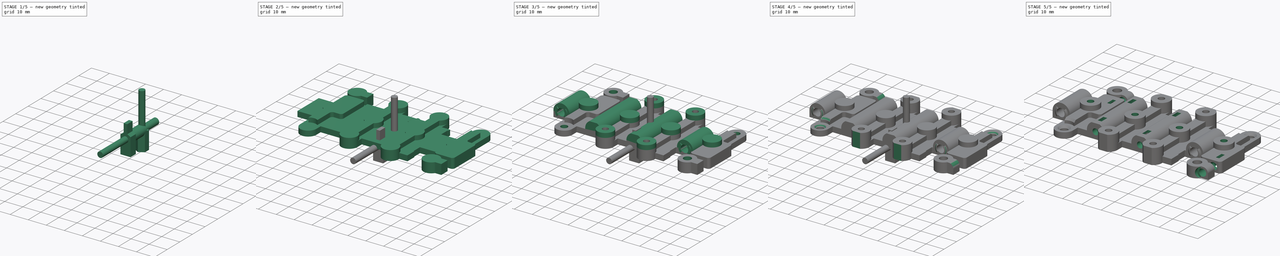
[diagram: build sequence overview — one tinted view per stage of 5, left to right]
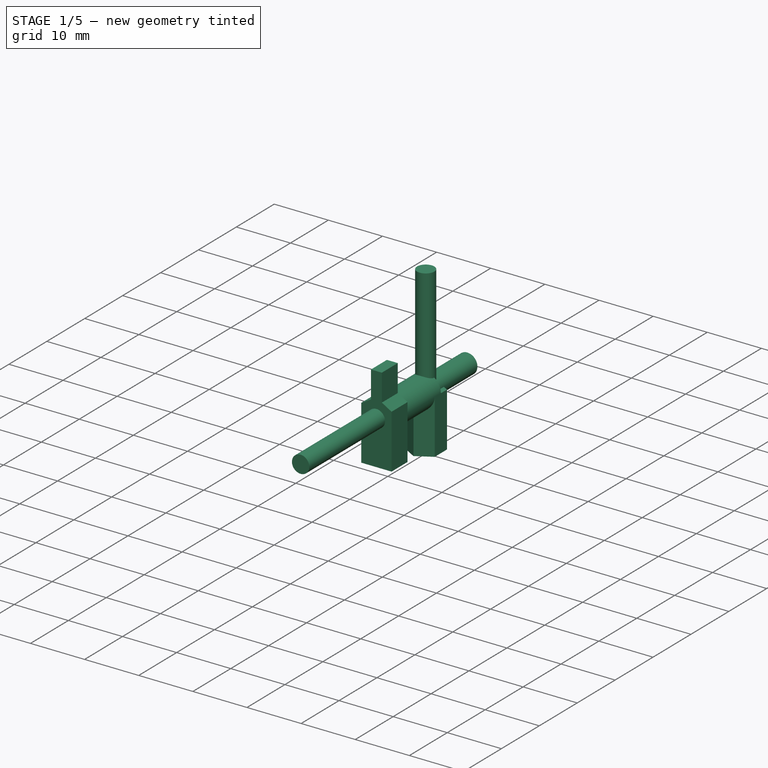
[diagram: stage 1 of 5 — iso view after this stage's code; geometry added in this stage tinted green]
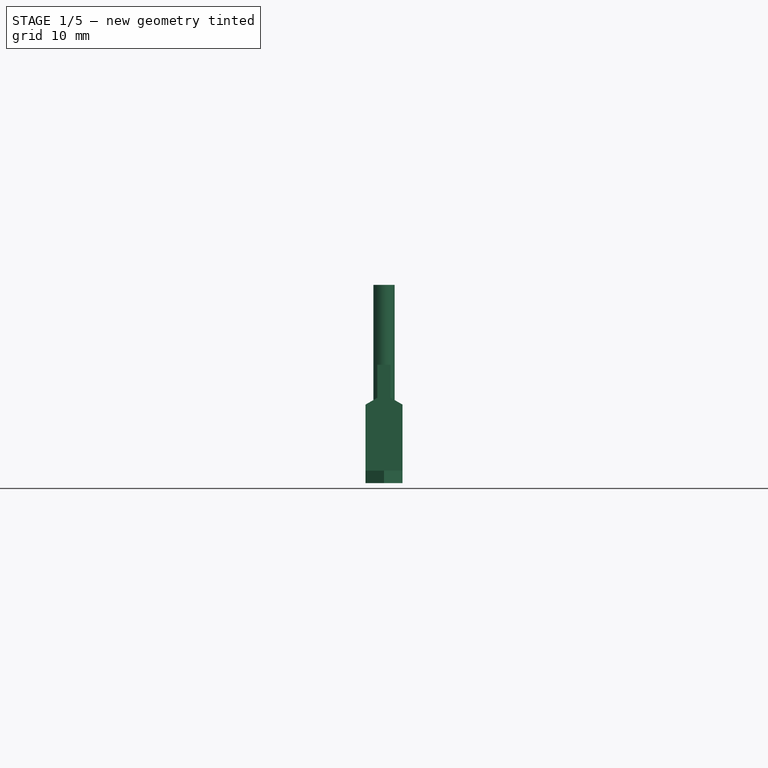
[diagram: stage 1 of 5 — front view after this stage's code; geometry added in this stage tinted green]
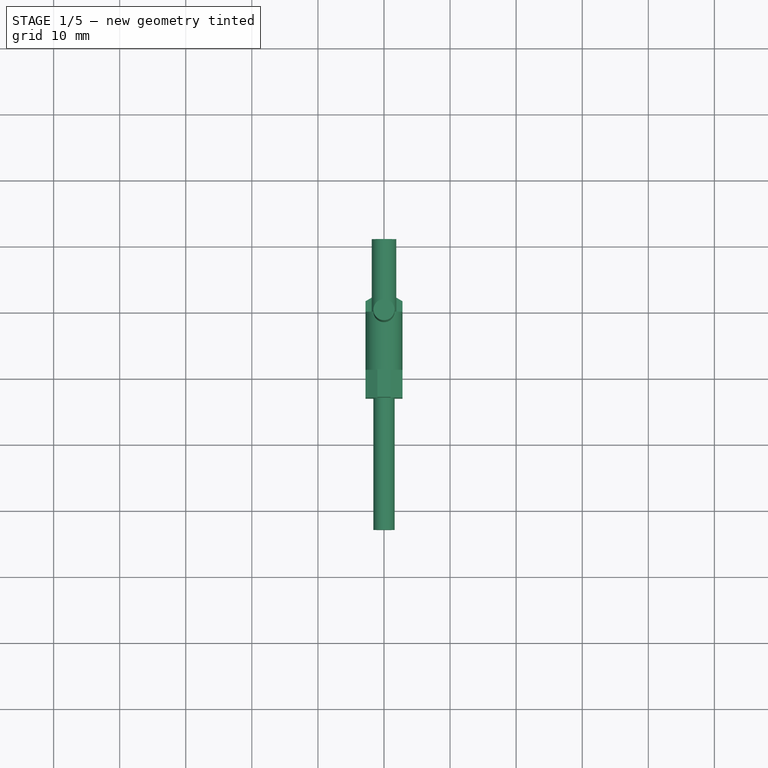
[diagram: stage 1 of 5 — top view after this stage's code; geometry added in this stage tinted green]
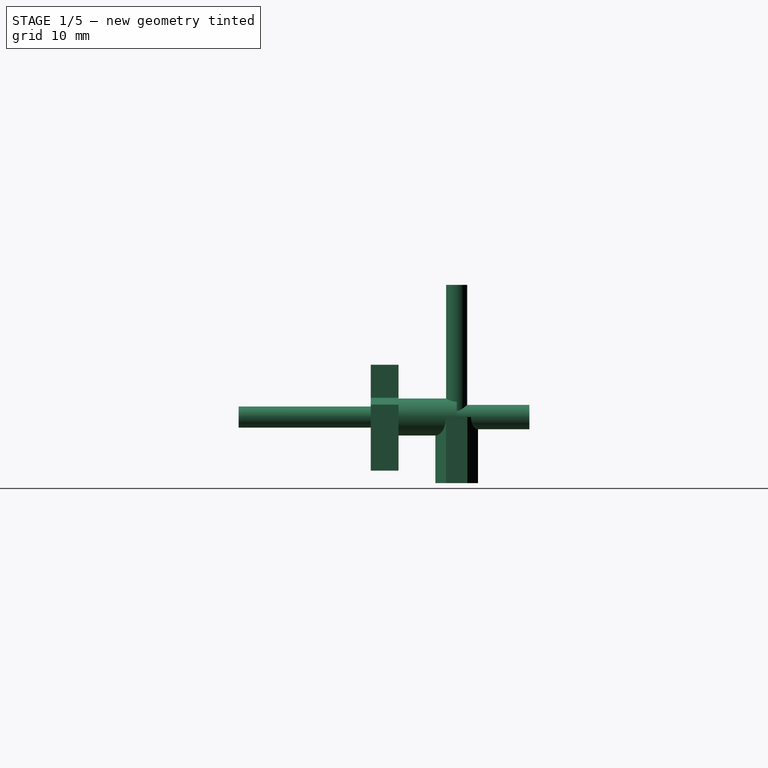
[diagram: stage 1 of 5 — right view after this stage's code; geometry added in this stage tinted green]
FCSTD DOCUMENT  (FreeCAD 1.0R39109 (Git))
Label: Plate
License: All rights reserved
LicenseURL: https://en.wikipedia.org/wiki/All_rights_reserved
objects: Sketcher::SketchObject×22, PartDesign::Pad×18, PartDesign::Body×15, PartDesign::FeatureBase×10, PartDesign::Pocket×4, PartDesign::Chamfer×3, Spreadsheet::Sheet×1, PartDesign::Fillet×1, PartDesign::Boolean×1, App::Part×1
note: 159 computed .brp shape members not serialized (recipe doc carries the construction recipe); baked Part::Feature solids carry a one-line shape summary decoded from their .brp

FEATURE [Sketcher::SketchObject] Sketch006  label="M3_screw_cutout_head_sketch"
  ArcFitTolerance = 0
  AttachmentSupport = -> [XZ_Plane008]
  FullyConstrained = true
  MakeInternals = false
  MapMode = 5
  Placement = pos=(0,0,0) rot=(1,0,0;1.5708rad)
  expr: Constraints[1] = 5.4 mm + Spreadsheet.B1 * 2
  sketch-geometry (1):
    g0: Circle CenterX=0 CenterY=0 CenterZ=0 NormalX=0 NormalY=0 NormalZ=1 AngleXU=0 Radius=2.8
  constraints (2):
    c: Coincident(g0,g-1)
    c: Diameter(g0) = 5.6
FEATURE [PartDesign::Pad] Pad006  label="M3_screw_cutout_head"
  Direction = (0,-1,2e-16)
  Length = 10
  Length2 = 10
  Placement = pos=(0,0,0) rot=(1,0,0;1.5708rad)
  Profile = -> Sketch006
  ReferenceAxis = -> Sketch006 [N_Axis]
  Suppressed = false
  Type = 0
FEATURE [Sketcher::SketchObject] Sketch007  label="M3_screw_cutout_tunnel_sketch"
  ArcFitTolerance = 0
  AttachmentSupport = -> [Pad006]
  FullyConstrained = true
  MakeInternals = false
  MapMode = 5
  Placement = pos=(0,0,0) rot=(-1,0,0;1.5708rad)
  expr: Constraints[1] = 3.5 mm + Spreadsheet.B1 * 2
  sketch-geometry (1):
    g0: Circle CenterX=0 CenterY=0 CenterZ=0 NormalX=0 NormalY=0 NormalZ=1 AngleXU=0 Radius=1.85
  constraints (2):
    c: Coincident(g0,g-1)
    c: Diameter(g0) = 3.7
FEATURE [PartDesign::Pad] Pad007  label="M3_screw_cutout_tunnel"
  BaseFeature = -> Pad006
  Direction = (0,1,2e-16)
  Length = 11
  Length2 = 10
  Placement = pos=(0,0,0) rot=(1,0,0;1.5708rad)
  Profile = -> Sketch007
  ReferenceAxis = -> Sketch007 [N_Axis]
  Suppressed = false
  Type = 0
FEATURE [PartDesign::Body] Body010  label="Plate_top_adjust_screw_cutout"
  AllowCompound = false
  Group = -> [Clone005]
  Origin = -> Origin010
  Placement = pos=(-30,22.2,2.75) rot=(0,0,1;3.14159rad)
  Tip = -> Clone005
  expr: .Placement.Base.y = Sketch001.Constraints.Top_adjust_screw_offset
FEATURE [Sketcher::SketchObject] Sketch025
  ArcFitTolerance = 0
  AttachmentSupport = -> [XY_Plane047]
  FullyConstrained = true
  MakeInternals = false
  MapMode = 5
  expr: Constraints[1] = 3 mm + Spreadsheet.B1 * 2
  sketch-geometry (1):
    g0: Circle CenterX=0 CenterY=0 CenterZ=0 NormalX=0 NormalY=0 NormalZ=1 AngleXU=0 Radius=1.6
  constraints (2):
    c: Coincident(g0,g-1)
    c: Diameter(g0) = 3.2
FEATURE [PartDesign::Pad] Pad024
  Direction = (0,0,1)
  Length = 20
  Length2 = 10
  Profile = -> Sketch025
  ReferenceAxis = -> Sketch025 [N_Axis]
  Suppressed = false
  Type = 0
FEATURE [Sketcher::SketchObject] Sketch026
  ArcFitTolerance = 0
  AttachmentSupport = -> [Pad024]
  FullyConstrained = true
  MakeInternals = false
  MapMode = 5
  Placement = pos=(0,0,0) rot=(1,0,0;3.14159rad)
  expr: Constraints[19] = 5.4 mm + Spreadsheet.B1 * 2
  sketch-geometry (7):
    g0: LineSegment StartX=0 StartY=3.23316 StartZ=0 EndX=-2.8 EndY=1.61658 EndZ=0
    g1: LineSegment StartX=-2.8 StartY=1.61658 StartZ=0 EndX=-2.8 EndY=-1.61658 EndZ=0
    g2: LineSegment StartX=-2.8 StartY=-1.61658 StartZ=0 EndX=4e-16 EndY=-3.23316 EndZ=0
    g3: LineSegment StartX=4e-16 StartY=-3.23316 StartZ=0 EndX=2.8 EndY=-1.61658 EndZ=0
    g4: LineSegment StartX=2.8 StartY=-1.61658 StartZ=0 EndX=2.8 EndY=1.61658 EndZ=0
    g5: LineSegment StartX=2.8 StartY=1.61658 StartZ=0 EndX=0 EndY=3.23316 EndZ=0
    g6: Circle [constr] CenterX=0 CenterY=0 CenterZ=0 NormalX=0 NormalY=0 NormalZ=1 AngleXU=0 Radius=3.23316
  constraints (16):
    c: Coincident(g0,g1)
    c: Coincident(g1,g2)
    c: Coincident(g2,g3)
    c: Coincident(g3,g4)
    c: Coincident(g4,g5)
    c: Coincident(g5,g0)
    c: Equal(g0, g1-g5) x5
    c: PointOnObject(g0,g6)
    c: PointOnObject(g1,g6)
    c: PointOnObject(g2,g6)
    c: PointOnObject(g3,g6)
    c: PointOnObject(g4,g6)
    c: PointOnObject(g5,g6)
    c: Coincident(g6,g-1)
    c: PointOnObject(g5,g-2)
    c: Distance(g4,g0) = 5.6
FEATURE [PartDesign::Pad] Pad025
  BaseFeature = -> Pad024
  Direction = (0,0,-1)
  Length = 10
  Length2 = 10
  Profile = -> Sketch026
  ReferenceAxis = -> Sketch026 [N_Axis]
  Suppressed = false
  Type = 0
FEATURE [PartDesign::Body] Body055  label="Plate_attachment_point_8_tunnel"
  AllowCompound = false
  Group = -> [Clone039]
  Origin = -> Origin055
  Placement = pos=(-34.5,0,5) rot=(0,0,1;0rad)
  Tip = -> Clone039
FEATURE [Sketcher::SketchObject] Sketch031  label="Special_attachment_point_tunnel_lower_rod_sketch"
  ArcFitTolerance = 0
  AttachmentSupport = -> [XZ_Plane060]
  FullyConstrained = true
  MakeInternals = false
  MapMode = 5
  Placement = pos=(0,0,0) rot=(1,0,0;1.5708rad)
  expr: .Constraints.Diameter = 3 mm + Spreadsheet.B1 * 2
  sketch-geometry (1):
    g0: Circle CenterX=0 CenterY=0 CenterZ=0 NormalX=0 NormalY=0 NormalZ=1 AngleXU=0 Radius=1.6
  constraints (2):
    c: Coincident(g0,g-1)
    c: Diameter(g0) = 3.2  'Diameter'
FEATURE [PartDesign::Pad] Pad030  label="Special_attachment_point_tunnel_inner_rod"
  Direction = (0,-1,2e-16)
  Length = 8.8
  Length2 = 10
  Placement = pos=(0,0,0) rot=(1,0,0;1.5708rad)
  Profile = -> Sketch031
  ReferenceAxis = -> Sketch031 [N_Axis]
  Suppressed = false
  Type = 0
  expr: Length = Sketch001.Constraints.Vertical_plane_center_distance - 7 mm - Spreadsheet.B1 * 2
FEATURE [Sketcher::SketchObject] Sketch032  label="Special_attachment_point_tunnel_hex_sketch"
  ArcFitTolerance = 0
  AttachmentSupport = -> [Pad030]
  FullyConstrained = true
  MakeInternals = false
  MapMode = 5
  Placement = pos=(0,-8.8,0) rot=(1,0,0;1.5708rad)
  expr: Constraints[4] = 2.7 mm + Spreadsheet.B1
  expr: Constraints[5] = -2.7 mm - Spreadsheet.B1
  sketch-geometry (10):
    g0: LineSegment [constr] StartX=0 StartY=3.5 StartZ=0 EndX=-2.8 EndY=1.88342 EndZ=0
    g1: LineSegment [constr] StartX=0 StartY=3.5 StartZ=0 EndX=2.8 EndY=1.88342 EndZ=0
    g2: LineSegment StartX=2.8 StartY=1.88342 StartZ=0 EndX=2.8 EndY=-8.11658 EndZ=0
    g3: LineSegment StartX=-2.8 StartY=1.88342 StartZ=0 EndX=-2.8 EndY=-8.11658 EndZ=0
    g4: LineSegment StartX=-2.8 StartY=-8.11658 StartZ=0 EndX=2.8 EndY=-8.11658 EndZ=0
    g5: LineSegment StartX=-2.8 StartY=1.88342 StartZ=0 EndX=-1 EndY=2.92265 EndZ=0
    g6: LineSegment StartX=2.8 StartY=1.88342 StartZ=0 EndX=1 EndY=2.92265 EndZ=0
    g7: LineSegment StartX=1 StartY=2.92265 StartZ=0 EndX=1 EndY=7.92265 EndZ=0
    g8: LineSegment StartX=-1 StartY=2.92265 StartZ=0 EndX=-1 EndY=7.92265 EndZ=0
    g9: LineSegment StartX=-1 StartY=7.92265 StartZ=0 EndX=1 EndY=7.92265 EndZ=0
  constraints (29):
    c: PointOnObject(g0,g-2)
    c: Coincident(g1,g0)
    c: Coincident(g2,g1)
    c: Coincident(g3,g0)
    c: DistanceX(g-2,g1) = 2.8
    c: DistanceX(g-2,g0) = -2.8
    c: Distance(g2) = 10
    c: Angle(g0,g1) = 2.0944
    c: Vertical(g3)
    c: Vertical(g2)
    c: Coincident(g4,g3)
    c: Coincident(g4,g2)
    c: Horizontal(g4)
    c: DistanceY(g0,g1) = 0
    c: DistanceY(g-1,g0) = 3.5
    c: Coincident(g5,g3)
    c: PointOnObject(g5,g0)
    c: Coincident(g6,g2)
    c: PointOnObject(g6,g1)
    c: Coincident(g7,g6)
    c: Vertical(g7)
    c: Coincident(g8,g5)
    c: Vertical(g8)
    c: Coincident(g9,g8)
    c: Coincident(g9,g7)
    c: Horizontal(g9)
    c: DistanceX(g-2,g6) = 1
    c: DistanceX(g-2,g5) = -1
    c: Distance(g7) = 5
FEATURE [PartDesign::Pad] Pad031  label="Special_attachment_point_tunnel_hex"
  BaseFeature = -> Pad030
  Direction = (0,-1,2e-16)
  Length = 4.2
  Length2 = 10
  Placement = pos=(0,0,0) rot=(1,0,0;1.5708rad)
  Profile = -> Sketch032
  ReferenceAxis = -> Sketch032 [N_Axis]
  Suppressed = false
  Type = 0
  expr: Length = 4 mm + Spreadsheet.B1 * 2
FEATURE [Sketcher::SketchObject] Sketch033  label="Special_attachment_point_tunnel_outer_rod_sketch"
  ArcFitTolerance = 0
  AttachmentSupport = -> [Pad031]
  FullyConstrained = true
  MakeInternals = false
  MapMode = 5
  Placement = pos=(0,-13,0) rot=(1,0,0;1.5708rad)
  expr: Constraints[1] = <<Special_attachment_point_tunnel_lower_rod_sketch>>.Constraints.Diameter
  sketch-geometry (1):
    g0: Circle CenterX=0 CenterY=0 CenterZ=0 NormalX=0 NormalY=0 NormalZ=1 AngleXU=0 Radius=1.6
  constraints (2):
    c: Coincident(g0,g-1)
    c: Diameter(g0) = 3.2
FEATURE [PartDesign::Pad] Pad032  label="Special_attachment_point_tunnel_outer_rod"
  BaseFeature = -> Pad031
  Direction = (0,-1,2e-16)
  Length = 20
  Length2 = 10
  Placement = pos=(0,0,0) rot=(1,0,0;1.5708rad)
  Profile = -> Sketch033
  ReferenceAxis = -> Sketch033 [N_Axis]
  Suppressed = false
  Type = 0
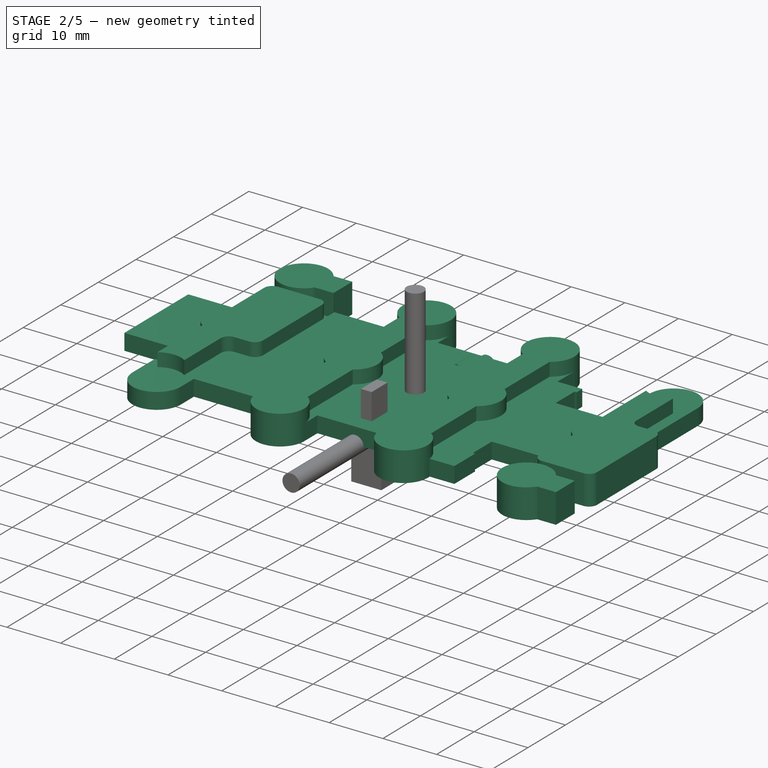
[diagram: stage 2 of 5 — iso view after this stage's code; geometry added in this stage tinted green]
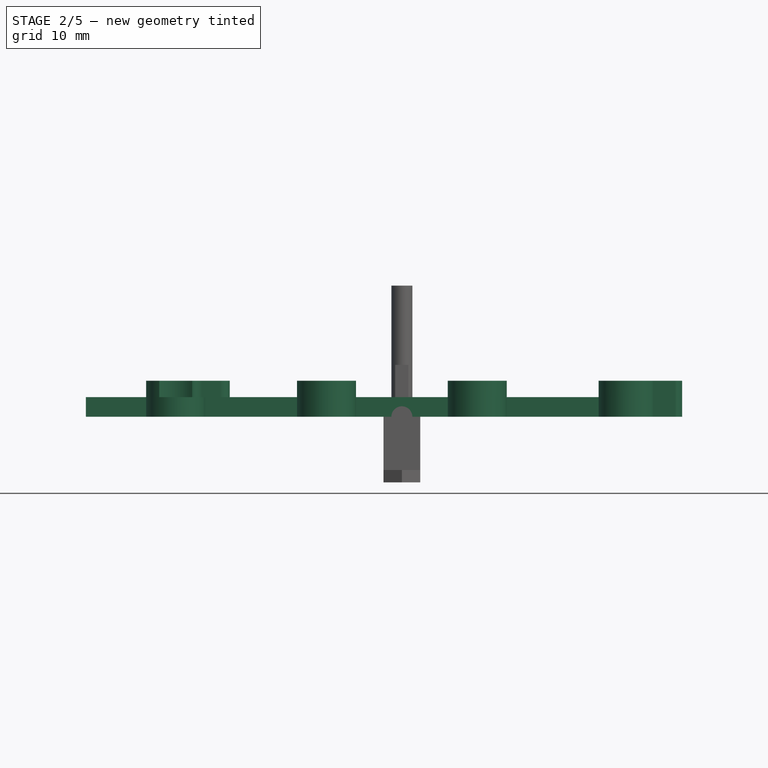
[diagram: stage 2 of 5 — front view after this stage's code; geometry added in this stage tinted green]
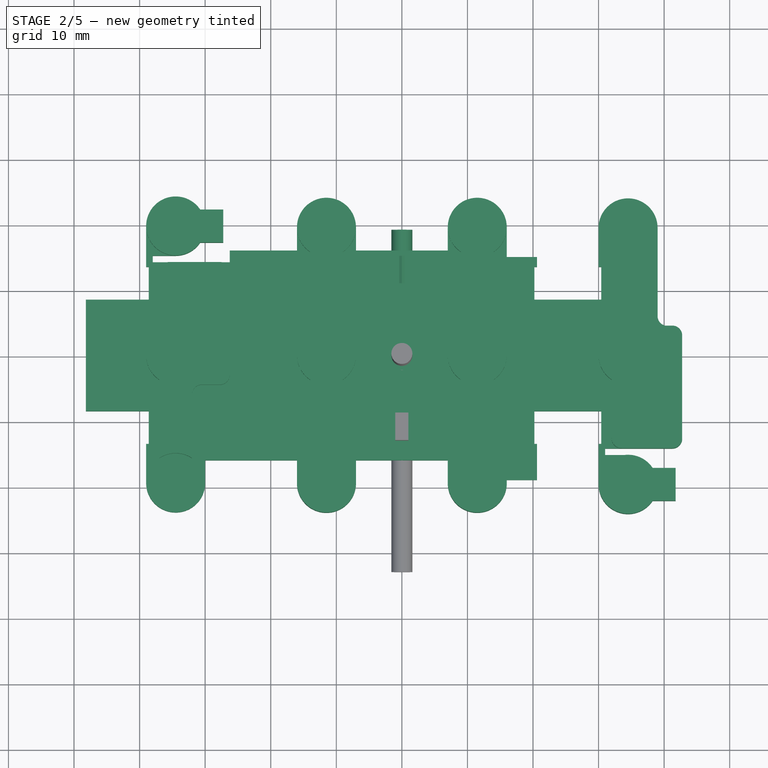
[diagram: stage 2 of 5 — top view after this stage's code; geometry added in this stage tinted green]
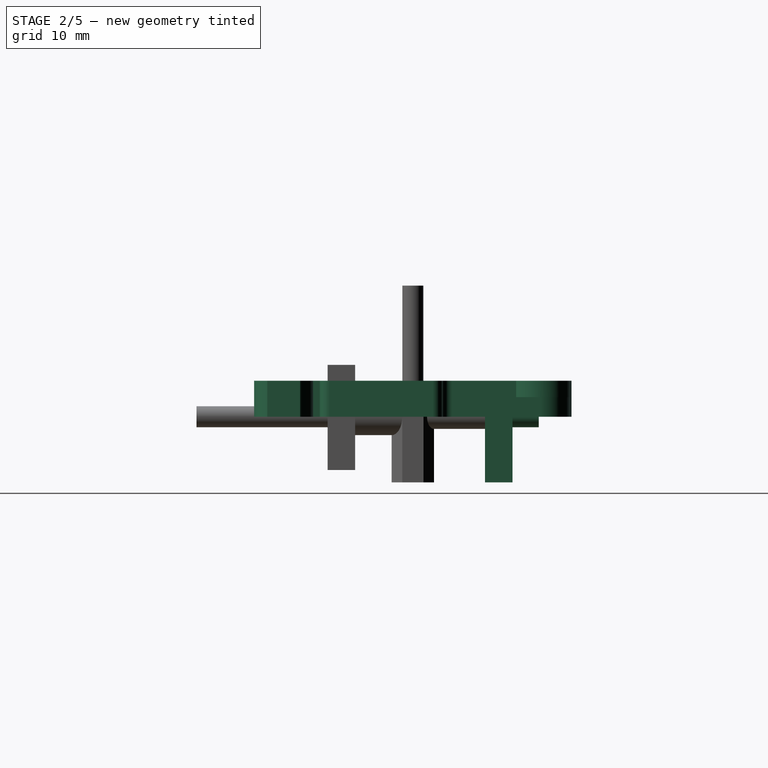
[diagram: stage 2 of 5 — right view after this stage's code; geometry added in this stage tinted green]
FEATURE [Spreadsheet::Sheet] Spreadsheet
  cells = A1='3D printing compensation; B1==0.1 mm; A3='Ideal extrusion width; B3==30 mm; A4='Actual extrusion width; B4==30 mm; A6='Counterpart screw hole diameter; B6==4 mm; A7='Counterpart nut hole depth; B7==5 mm
FEATURE [Sketcher::SketchObject] Sketch001  label="Plate_base_sketch"
  ArcFitTolerance = 0
  AttachmentSupport = -> [XY_Plane001]
  FullyConstrained = true
  MakeInternals = false
  MapMode = 5
  expr: .Constraints.Attachment_point_distance = .Constraints.Horinzontal_bearing_center_distance * 2 / 3
  expr: .Constraints.Bearing_cutout_depth = 0.3 mm + Spreadsheet.B1
  expr: .Constraints.Stationary_bearing_flap_center_distance = Spreadsheet.B4 / 2 + 4.45 mm
  expr: .Constraints.Vertical_adjust_center_distance = Spreadsheet.B4 / 2 + 4.7 mm
  expr: .Constraints.Vertical_bearing_center_distance = Spreadsheet.B3 / 2 + 4.5 mm
  expr: Constraints[109] = .Constraints.Attachment_point_distance
  expr: Constraints[120] = .Constraints.Attachment_point_diameter
  expr: Constraints[121] = .Constraints.Attachment_point_diameter
  expr: Constraints[12] = .Constraints.Bearing_flap_diameter
  expr: Constraints[134] = .Constraints.Plate_thickness
  expr: Constraints[13] = .Constraints.Bearing_flap_diameter
  expr: Constraints[140] = .Constraints.Counterpart_slot_height
  expr: Constraints[14] = .Constraints.Bearing_flap_diameter
  expr: Constraints[150] = .Constraints.Adjust_pad_center_overhang
  expr: Constraints[161] = -.Constraints.Vertical_adjust_center_distance
  expr: Constraints[181] = -.Constraints.Stationary_bearing_flap_center_distance
  expr: Constraints[197] = .Constraints.Bearing_cutout_height
  expr: Constraints[19] = -.Constraints.Horinzontal_bearing_center_distance
  expr: Constraints[21] = .Constraints.Vertical_bearing_center_distance
  expr: Constraints[227] = .Constraints.Bearing_cutout_depth
  expr: Constraints[228] = .Constraints.Bearing_cutout_depth
  expr: Constraints[243] = .Constraints.Edge_fillet_radius
  expr: Constraints[245] = .Constraints.Edge_fillet_radius
  expr: Constraints[39] = .Constraints.Adjust_pad_thickness
  expr: Constraints[57] = .Constraints.Adjust_slot_hinge_thickness
  expr: Constraints[65] = .Constraints.Adjust_slot_thickness
  expr: Constraints[97] = .Constraints.Attachment_point_diameter
  sketch-geometry (82):
    g0: LineSegment StartX=-26.25 StartY=16 StartZ=0 EndX=-16 EndY=16 EndZ=0
    g1: ArcOfCircle CenterX=34.5 CenterY=19.45 CenterZ=0 NormalX=0 NormalY=0 NormalZ=1 AngleXU=0 Radius=4.5 StartAngle=5e-16 EndAngle=3.14159
    g2: ArcOfCircle CenterX=34.5 CenterY=-19.7 CenterZ=0 NormalX=0 NormalY=0 NormalZ=1 AngleXU=0 Radius=4.5 StartAngle=3.14159 EndAngle=5.69415
    g3: ArcOfCircle CenterX=-34.5 CenterY=19.7 CenterZ=0 NormalX=0 NormalY=0 NormalZ=1 AngleXU=0 Radius=4.5 StartAngle=0.589031 EndAngle=3.14159
    g4: LineSegment StartX=-38.6 StartY=8.5 StartZ=0 EndX=-48.2 EndY=8.5 EndZ=0
    g5: LineSegment StartX=-48.2 StartY=8.5 StartZ=0 EndX=-48.2 EndY=-8.5 EndZ=0
    g6: LineSegment StartX=-48.2 StartY=-8.5 StartZ=0 EndX=-38.6 EndY=-8.5 EndZ=0
    g7: ArcOfCircle CenterX=-34.5 CenterY=-19.45 CenterZ=0 NormalX=0 NormalY=0 NormalZ=1 AngleXU=0 Radius=4.5 StartAngle=3.14159 EndAngle=6.28319
    g8: LineSegment [constr] StartX=-39 StartY=19.5 StartZ=0 EndX=16 EndY=19.5 EndZ=0
    g9: LineSegment [constr] StartX=-16 StartY=-19.5 StartZ=0 EndX=34.5 EndY=-19.5 EndZ=0
    g10: LineSegment [constr] StartX=34.5 StartY=19.45 StartZ=0 EndX=34.5 EndY=-19.7 EndZ=0
    g11: LineSegment [constr] StartX=-34.5 StartY=19.7 StartZ=0 EndX=-34.5 EndY=-19.45 EndZ=0
    g12: LineSegment StartX=31 StartY=-15.2 StartZ=0 EndX=31 EndY=-14.2 EndZ=0
    g13: LineSegment StartX=31 StartY=-14.2 StartZ=0 EndX=41.25 EndY=-14.2 EndZ=0
    g14: LineSegment StartX=39 StartY=19.45 StartZ=0 EndX=39 EndY=6 EndZ=0
    g15: LineSegment StartX=-30 StartY=-19.45 StartZ=0 EndX=-30 EndY=-16 EndZ=0
    g16: LineSegment StartX=-27.25 StartY=22.2 StartZ=0 EndX=-27.25 EndY=17.2 EndZ=0
    g17: LineSegment StartX=-38 StartY=15.2 StartZ=0 EndX=-38 EndY=14.2 EndZ=0
    g18: LineSegment StartX=-38 StartY=14.2 StartZ=0 EndX=-26.25 EndY=14.2 EndZ=0
    g19: LineSegment StartX=-26.25 StartY=14.2 StartZ=0 EndX=-26.25 EndY=16 EndZ=0
    g20: LineSegment StartX=16 StartY=19.5 StartZ=0 EndX=16 EndY=15 EndZ=0
    g21: LineSegment StartX=20.2 StartY=8.5 StartZ=0 EndX=30.4 EndY=8.5 EndZ=0
    g22: LineSegment StartX=20.2 StartY=-8.5 StartZ=0 EndX=30.4 EndY=-8.5 EndZ=0
    g23: LineSegment StartX=-30.7583 StartY=22.2 StartZ=0 EndX=-27.25 EndY=22.2 EndZ=0
    g24: LineSegment StartX=38.2417 StartY=-22.2 StartZ=0 EndX=41.75 EndY=-22.2 EndZ=0
    g25: LineSegment StartX=31 StartY=-15.2 StartZ=0 EndX=34.5 EndY=-15.2 EndZ=0
    g26: LineSegment StartX=40.5 StartY=4.5 StartZ=0 EndX=41.25 EndY=4.5 EndZ=0
    g27: LineSegment StartX=42.75 StartY=3 StartZ=0 EndX=42.75 EndY=-12.7 EndZ=0
    g28: LineSegment StartX=41.75 StartY=-17.2 StartZ=0 EndX=41.75 EndY=-22.2 EndZ=0
    g29: LineSegment StartX=16 StartY=15 StartZ=0 EndX=20.6 EndY=15 EndZ=0
    g30: ArcOfCircle CenterX=34.5 CenterY=-19.7 CenterZ=0 NormalX=0 NormalY=0 NormalZ=1 AngleXU=0 Radius=4.5 StartAngle=0.589031 EndAngle=1.5708
    g31: LineSegment StartX=38.2417 StartY=-17.2 StartZ=0 EndX=41.75 EndY=-17.2 EndZ=0
    g32: LineSegment StartX=-38 StartY=15.2 StartZ=0 EndX=-34.5 EndY=15.2 EndZ=0
    g33: ArcOfCircle CenterX=-34.5 CenterY=19.7 CenterZ=0 NormalX=0 NormalY=0 NormalZ=1 AngleXU=0 Radius=4.5 StartAngle=4.71239 EndAngle=5.69415
    g34: LineSegment StartX=-30.7583 StartY=17.2 StartZ=0 EndX=-27.25 EndY=17.2 EndZ=0
    g35: ArcOfCircle CenterX=11.5 CenterY=19.5 CenterZ=0 NormalX=0 NormalY=0 NormalZ=1 AngleXU=0 Radius=4.5 StartAngle=0 EndAngle=3.14159
    g36: ArcOfCircle CenterX=-11.5 CenterY=19.5 CenterZ=0 NormalX=0 NormalY=0 NormalZ=1 AngleXU=0 Radius=4.5 StartAngle=0 EndAngle=3.14159
    g37: LineSegment StartX=-16 StartY=16 StartZ=0 EndX=-16 EndY=19.5 EndZ=0
    g38: LineSegment StartX=-7 StartY=19.5 StartZ=0 EndX=-7 EndY=16 EndZ=0
    g39: LineSegment StartX=-7 StartY=16 StartZ=0 EndX=7 EndY=16 EndZ=0
    g40: LineSegment StartX=7 StartY=16 StartZ=0 EndX=7 EndY=19.5 EndZ=0
    g41: ArcOfCircle CenterX=-11.5 CenterY=-19.5 CenterZ=0 NormalX=0 NormalY=0 NormalZ=1 AngleXU=0 Radius=4.5 StartAngle=3.14159 EndAngle=6.28319
    g42: ArcOfCircle CenterX=11.5 CenterY=-19.5 CenterZ=0 NormalX=0 NormalY=0 NormalZ=1 AngleXU=0 Radius=4.5 StartAngle=3.14159 EndAngle=6.28319
    g43: LineSegment StartX=-16 StartY=-19.5 StartZ=0 EndX=-16 EndY=-16 EndZ=0
    g44: LineSegment StartX=-16 StartY=-16 StartZ=0 EndX=-30 EndY=-16 EndZ=0
    g45: LineSegment StartX=-7 StartY=-19.5 StartZ=0 EndX=-7 EndY=-16 EndZ=0
    g46: LineSegment StartX=7 StartY=-19.5 StartZ=0 EndX=7 EndY=-16 EndZ=0
    g47: LineSegment StartX=7 StartY=-16 StartZ=0 EndX=-7 EndY=-16 EndZ=0
    g48: LineSegment [constr] StartX=11.5 StartY=19.5 StartZ=0 EndX=11.5 EndY=-19.5 EndZ=0
    g49: LineSegment [constr] StartX=-11.5 StartY=19.5 StartZ=0 EndX=-11.5 EndY=-19.5 EndZ=0
    g50: LineSegment [constr] StartX=-39 StartY=19.7 StartZ=0 EndX=-34.5 EndY=19.7 EndZ=0
    g51: LineSegment [constr] StartX=30 StartY=-19.7 StartZ=0 EndX=34.5 EndY=-19.7 EndZ=0
    g52: LineSegment [constr] StartX=-30.7583 StartY=22.2 StartZ=0 EndX=-30.7583 EndY=17.2 EndZ=0
    g53: LineSegment [constr] StartX=38.2417 StartY=-17.2 StartZ=0 EndX=38.2417 EndY=-22.2 EndZ=0
    g54: LineSegment [constr] StartX=30 StartY=19.45 StartZ=0 EndX=39 EndY=19.45 EndZ=0
    g55: LineSegment [constr] StartX=-39 StartY=-19.45 StartZ=0 EndX=-30 EndY=-19.45 EndZ=0
    g56: LineSegment StartX=-39 StartY=19.7 StartZ=0 EndX=-39 EndY=13.5 EndZ=0
    g57: LineSegment StartX=-39 StartY=13.5 StartZ=0 EndX=-38.6 EndY=13.5 EndZ=0
    g58: LineSegment StartX=-38.6 StartY=13.5 StartZ=0 EndX=-38.6 EndY=8.5 EndZ=0
    g59: LineSegment StartX=-38.6 StartY=-8.5 StartZ=0 EndX=-38.6 EndY=-13.5 EndZ=0
    g60: LineSegment StartX=-38.6 StartY=-13.5 StartZ=0 EndX=-39 EndY=-13.5 EndZ=0
    g61: LineSegment StartX=-39 StartY=-13.5 StartZ=0 EndX=-39 EndY=-19.45 EndZ=0
    g62: LineSegment StartX=20.2 StartY=13.5 StartZ=0 EndX=20.2 EndY=8.5 EndZ=0
    g63: LineSegment StartX=20.6 StartY=15 StartZ=0 EndX=20.6 EndY=13.5 EndZ=0
    g64: LineSegment StartX=20.6 StartY=13.5 StartZ=0 EndX=20.2 EndY=13.5 EndZ=0
    g65: LineSegment StartX=30.4 StartY=8.5 StartZ=0 EndX=30.4 EndY=13.5 EndZ=0
    g66: LineSegment StartX=30.4 StartY=13.5 StartZ=0 EndX=30 EndY=13.5 EndZ=0
    g67: LineSegment StartX=30 StartY=13.5 StartZ=0 EndX=30 EndY=19.45 EndZ=0
    g68: LineSegment StartX=20.2 StartY=-13.5 StartZ=0 EndX=20.2 EndY=-8.5 EndZ=0
    g69: LineSegment StartX=20.6 StartY=-19 StartZ=0 EndX=20.6 EndY=-13.5 EndZ=0
    g70: LineSegment StartX=20.6 StartY=-13.5 StartZ=0 EndX=20.2 EndY=-13.5 EndZ=0
    g71: LineSegment StartX=30.4 StartY=-13.5 StartZ=0 EndX=30.4 EndY=-8.5 EndZ=0
    g72: LineSegment StartX=30 StartY=-19.7 StartZ=0 EndX=30 EndY=-13.5 EndZ=0
    g73: LineSegment StartX=30 StartY=-13.5 StartZ=0 EndX=30.4 EndY=-13.5 EndZ=0
    g74: ArcOfCircle CenterX=41.25 CenterY=3 CenterZ=0 NormalX=0 NormalY=0 NormalZ=1 AngleXU=0 Radius=1.5 StartAngle=0 EndAngle=1.5708
    g75: GeomPoint [constr] X=42.75 Y=4.5 Z=0
    g76: ArcOfCircle CenterX=40.5 CenterY=6 CenterZ=0 NormalX=0 NormalY=0 NormalZ=1 AngleXU=0 Radius=1.5 StartAngle=3.14159 EndAngle=4.71239
    g77: GeomPoint [constr] X=39 Y=4.5 Z=0
    g78: ArcOfCircle CenterX=41.25 CenterY=-12.7 CenterZ=0 NormalX=0 NormalY=0 NormalZ=1 AngleXU=0 Radius=1.5 StartAngle=4.71239 EndAngle=6.28319
    g79: GeomPoint [constr] X=42.75 Y=-14.2 Z=0
    g80: LineSegment StartX=16 StartY=-19.5 StartZ=0 EndX=16 EndY=-19 EndZ=0
    g81: LineSegment StartX=16 StartY=-19 StartZ=0 EndX=20.6 EndY=-19 EndZ=0
  constraints (251):
    c: Horizontal(g0)
    c: Coincident(g1,g67)
    c: Coincident(g72,g2)
    c: Coincident(g56,g3)
    c: Coincident(g4,g58)
    c: Horizontal(g4)
    c: Coincident(g5,g4)
    c: Vertical(g5)
    c: Coincident(g6,g5)
    c: Horizontal(g6)
    c: Coincident(g59,g6)
    c: Diameter(g3) = 9  'Bearing_flap_diameter'
    c: Diameter(g1) = 9
    c: Diameter(g2) = 9
    c: Diameter(g7) = 9
    c: Horizontal(g8)
    c: Distance(g-1,g8) = 19.5  'Vertical_bearing_center_distance'
    c: Distance(g-1,g0) = 16  'Vertical_plane_center_distance'
    c: DistanceX(g-2,g1) = 34.5  'Horinzontal_bearing_center_distance'
    c: DistanceX(g-2,g3) = -34.5
    c: Horizontal(g9)
    c: Distance(g-1,g9) = 19.5
    c: Coincident(g10,g1)
    c: Coincident(g10,g2)
    c: Vertical(g10)
    c: Coincident(g11,g7)
    c: Vertical(g11)
    c: Vertical(g12)
    c: Coincident(g13,g12)
    c: Horizontal(g13)
    c: Vertical(g14)
    c: Coincident(g15,g7)
    c: Vertical(g15)
    c: Vertical(g16)
    c: Vertical(g17)
    c: Coincident(g18,g17)
    c: Horizontal(g18)
    c: Coincident(g19,g18)
    c: Vertical(g19)
    c: Distance(g16) = 5
    c: DistanceY(g58,g0) = 7.5  'Counterpart_slot_height'
    c: Vertical(g20)
    c: Horizontal(g21)
    c: Coincident(g65,g21)
    c: Coincident(g22,g68)
    c: Horizontal(g22)
    c: Coincident(g71,g22)
    c: Coincident(g23,g16)
    c: Horizontal(g23)
    c: DistanceX(g16,g19) = 1
    c: Horizontal(g24)
    c: DistanceX(g-2,g25) = 34.5  'Bottom_adjust_slot_overhang_horizontal_center_distance'
    c: DistanceY(g-1,g25) = -15.2  'Bottom_adjust_slot_overhang_vertical_center_distance'
    c: DistanceX(g-2,g16) = -27.25  'Top_adjust_slot_overhang_horizontal_center_distance'
    c: DistanceY(g-1,g16) = 17.2  'Top_adjust_slot_overhang_vertical_center_distance'
    c: Horizontal(g25)
    c: Vertical(g27)
    c: DistanceX(g2,g12) = 1
    c: DistanceX(g3,g17) = 1  'Adjust_slot_hinge_thickness'
    c: Coincident(g28,g24)
    c: Vertical(g28)
    c: Distance(g12) = 1  'Adjust_slot_thickness'
    c: DistanceY(g2,g12) = 5.5
    c: DistanceY(g17,g3) = 5.5
    c: Coincident(g25,g12)
    c: Distance(g17) = 1
    c: Distance(g4,g5) = 17  'Counterpart_tunnel_length'
    c: DistanceX(g-2,g4) = -48.2  'Leftmost_distance'
    c: DistanceX(g-2,g1) = 39  'Rightmost_distance'
    c: Coincident(g2,g24)
    c: Coincident(g3,g23)
    c: Coincident(g29,g20)
    c: Horizontal(g29)
    c: Coincident(g63,g29)
    c: Coincident(g62,g21)
    c: Distance(g0,g8) = 3.5  'Plate_thickness'
    c: PointOnObject(g25,g10)
    c: Coincident(g30,g2)
    c: Coincident(g30,g25)
    c: Coincident(g31,g30)
    c: Horizontal(g31)
    c: Coincident(g28,g31)
    c: Distance(g28) = 5  'Adjust_pad_thickness'
    c: DistanceX(g28,g79) = 1
    c: Coincident(g32,g17)
    c: PointOnObject(g32,g11)
    c: Horizontal(g32)
    c: Coincident(g33,g32)
    c: Coincident(g34,g33)
    c: Coincident(g34,g16)
    c: Horizontal(g34)
    c: DistanceX(g2,g28) = 7.25  'Adjust_pad_center_overhang'
    c: DistanceY(g-1,g24) = -22.2  'Bottom_adjust_screw_offset'
    c: DistanceY(g-1,g16) = 22.2  'Top_adjust_screw_offset'
    c: Coincident(g19,g0)
    c: PointOnObject(g35,g8)
    c: PointOnObject(g35,g8)
    c: Diameter(g35) = 9
    c: PointOnObject(g36,g8)
    c: PointOnObject(g36,g8)
    c: Diameter(g36) = 9  'Attachment_point_diameter'
    c: Coincident(g37,g0)
    c: Vertical(g37)
    c: Vertical(g38)
    c: Coincident(g39,g38)
    c: Horizontal(g39)
    c: Coincident(g40,g39)
    c: Vertical(g40)
    c: DistanceX(g3,g36) = 23  'Attachment_point_distance'
    c: DistanceX(g36,g35) = 23
    c: Coincident(g38,g36)
    c: Coincident(g40,g35)
    c: Coincident(g37,g36)
    c: Coincident(g20,g35)
    c: PointOnObject(g36,g8)
    c: PointOnObject(g41,g9)
    c: PointOnObject(g41,g9)
    c: PointOnObject(g42,g9)
    c: PointOnObject(g42,g9)
    c: PointOnObject(g42,g9)
    c: Diameter(g41) = 9
    c: Diameter(g42) = 9
    c: Coincident(g43,g41)
    c: Vertical(g43)
    c: Coincident(g44,g43)
    c: Coincident(g44,g15)
    c: Horizontal(g44)
    c: Coincident(g45,g41)
    c: Vertical(g45)
    c: Coincident(g46,g42)
    c: Vertical(g46)
    c: Coincident(g47,g46)
    c: Coincident(g47,g45)
    c: Horizontal(g47)
    c: Distance(g45) = 3.5
    c: Coincident(g80,g42)
    c: Coincident(g81,g69)
    c: PointOnObject(g38,g0)
    c: PointOnObject(g43,g47)
    c: PointOnObject(g6,g22)
    c: DistanceY(g15,g6) = 7.5
    c: Coincident(g48,g35)
    c: Coincident(g48,g42)
    c: Vertical(g48)
    c: Coincident(g49,g36)
    c: Coincident(g49,g41)
    c: Vertical(g49)
    c: DistanceY(g20,g39) = 1
    c: Horizontal(g26)
    c: DistanceY(g-1,g77) = 4.5
    c: Distance(g16,g11) = 7.25
    c: Coincident(g11,g33)
    c: Coincident(g3,g33)
    c: Coincident(g50,g3)
    c: Coincident(g50,g3)
    c: Horizontal(g50)
    c: DistanceY(g-1,g3) = 19.7  'Vertical_adjust_center_distance'
    c: PointOnObject(g9,g10)
    c: Coincident(g51,g2)
    c: Coincident(g51,g2)
    c: Horizontal(g51)
    c: DistanceY(g-1,g2) = -19.7
    c: Coincident(g52,g3)
    c: Coincident(g52,g33)
    c: Vertical(g52)
    c: Coincident(g53,g30)
    c: Coincident(g53,g2)
    c: Vertical(g53)
    c: Coincident(g20,g8)
    c: Coincident(g54,g67)
    c: Coincident(g54,g1)
    c: Horizontal(g54)
    c: PointOnObject(g1,g54)
    c: Coincident(g14,g1)
    c: DistanceY(g-1,g1) = 19.45  'Stationary_bearing_flap_center_distance'
    c: Coincident(g9,g41)
    c: Coincident(g55,g7)
    c: Coincident(g55,g7)
    c: Horizontal(g55)
    c: PointOnObject(g7,g55)
    c: Coincident(g7,g61)
    c: DistanceY(g-1,g7) = -19.45
    c: Coincident(g56,g57)
    c: Vertical(g56)
    c: PointOnObject(g8,g56)
    c: Coincident(g57,g58)
    c: Vertical(g58)
    c: DistanceX(g4,g56) = 9.2  'Counterpart_slot_width'
    c: Distance(g57) = 0.4  'Bearing_cutout_depth'
    c: Distance(g58) = 5  'Bearing_cutout_height'
    c: Horizontal(g57)
    c: Coincident(g59,g60)
    c: Vertical(g59)
    c: Coincident(g60,g61)
    c: Vertical(g61)
    c: Horizontal(g60)
    c: PointOnObject(g6,g58)
    c: Distance(g59) = 5
    c: DistanceX(g-2,g56) = -39  'Left_counterpart_tunnel_center_distance'
    c: Coincident(g64,g62)
    c: Vertical(g62)
    c: Coincident(g63,g64)
    c: Vertical(g63)
    c: Coincident(g65,g66)
    c: Vertical(g65)
    c: Coincident(g66,g67)
    c: Vertical(g67)
    c: Horizontal(g66)
    c: Horizontal(g64)
    c: PointOnObject(g62,g57)
    c: PointOnObject(g66,g64)
    c: Coincident(g70,g68)
    c: Vertical(g68)
    c: Coincident(g69,g70)
    c: Vertical(g69)
    c: Coincident(g73,g71)
    c: Vertical(g71)
    c: Coincident(g72,g73)
    c: Vertical(g72)
    c: Horizontal(g73)
    c: PointOnObject(g72,g70)
    c: Distance(g69,g72) = 9.4  'Right_counterpart_slot_width'
    c: PointOnObject(g68,g60)
    c: Horizontal(g70)
    c: DistanceX(g-2,g69) = 20.6  'Right_counterpart_distance'
    c: PointOnObject(g22,g62)
    c: PointOnObject(g22,g65)
    c: Distance(g64) = 0.4
    c: Distance(g66) = 0.4
    c: PointOnObject(g21,g4)
    c: PointOnObject(g29,g69)
    c: PointOnObject(g75,g26)
    c: PointOnObject(g75,g27)
    c: Tangent(g26,g74) = 1.5708
    c: Tangent(g27,g74) = 1.5708
    c: PointOnObject(g77,g14)
    c: PointOnObject(g77,g26)
    c: Tangent(g14,g76) = -1.5708
    c: Tangent(g26,g76) = -1.5708
    c: PointOnObject(g79,g13)
    c: PointOnObject(g79,g27)
    c: Tangent(g13,g78) = -1.5708
    c: Tangent(g27,g78) = 1.5708
    c: Radius(g78) = 1.5
    c: Radius(g76) = 1.5  'Edge_fillet_radius'
    c: Radius(g74) = 1.5
    c: DistanceY(g-1,g17) = 14.2  'Adjust_slot_bottom_center_distance'
    c: Coincident(g80,g81)
    c: Horizontal(g81)
    c: Vertical(g80)
    c: DistanceY(g80,g46) = 3
FEATURE [PartDesign::Pad] Pad001  label="Plate_base"
  Direction = (0,0,1)
  Length = 3
  Length2 = 10
  Profile = -> Sketch001
  ReferenceAxis = -> Sketch001 [N_Axis]
  Suppressed = false
  Type = 0
FEATURE [Sketcher::SketchObject] Sketch005  label="Plate_screw_pads_sketch"
  ArcFitTolerance = 0
  AttachmentSupport = -> [Pad001]
  FullyConstrained = true
  MakeInternals = false
  MapMode = 5
  Placement = pos=(0,0,3) rot=(0,0,1;0rad)
  expr: .Constraints.Adjust_pad_height = Sketch001.Constraints.Adjust_pad_thickness
  expr: .Constraints.Adjust_slot_bottom_center_distance = Sketch001.Constraints.Adjust_slot_bottom_center_distance
  expr: .Constraints.Bearing_screw_pad_diameter = Sketch001.Constraints.Bearing_flap_diameter
  expr: .Constraints.Edge_fillet_radius = Sketch001.Constraints.Edge_fillet_radius
  expr: Constraints[100] = .Constraints.Bearing_screw_pad_diameter
  expr: Constraints[105] = .Constraints.Bearing_screw_pad_diameter
  expr: Constraints[108] = .Constraints.Bearing_screw_pad_diameter
  expr: Constraints[109] = .Constraints.Bearing_screw_pad_diameter
  expr: Constraints[10] = .Constraints.Bearing_screw_pad_diameter
  expr: Constraints[111] = Sketch001.Constraints.Vertical_adjust_center_distance
  expr: Constraints[113] = Sketch001.Constraints.Vertical_bearing_center_distance
  expr: Constraints[114] = Sketch001.Constraints.Attachment_point_distance
  expr: Constraints[122] = -Sketch001.Constraints.Vertical_adjust_center_distance
  expr: Constraints[124] = Sketch001.Constraints.Horinzontal_bearing_center_distance
  expr: Constraints[126] = -Sketch001.Constraints.Vertical_bearing_center_distance
  expr: Constraints[133] = Sketch001.Constraints.Stationary_bearing_flap_center_distance
  expr: Constraints[135] = -Sketch001.Constraints.Stationary_bearing_flap_center_distance
  expr: Constraints[149] = .Constraints.Edge_fillet_radius
  expr: Constraints[150] = .Constraints.Edge_fillet_radius
  expr: Constraints[155] = .Constraints.Edge_fillet_radius
  expr: Constraints[172] = .Constraints.Edge_fillet_radius
  expr: Constraints[173] = .Constraints.Edge_fillet_radius
  expr: Constraints[174] = .Constraints.Edge_fillet_radius
  expr: Constraints[175] = .Constraints.Edge_fillet_radius
  expr: Constraints[187] = .Constraints.Connector_thickness
  expr: Constraints[188] = .Constraints.Connector_thickness
  expr: Constraints[189] = .Constraints.Connector_thickness
  expr: Constraints[191] = -.Constraints.Adjust_slot_bottom_center_distance
  expr: Constraints[31] = .Constraints.Adjust_pad_height
  expr: Constraints[32] = Sketch001.Constraints.Adjust_pad_center_overhang
  expr: Constraints[56] = .Constraints.Bearing_screw_pad_diameter
  expr: Constraints[57] = .Constraints.Bearing_screw_pad_diameter
  expr: Constraints[67] = .Constraints.Bearing_screw_pad_diameter
  expr: Constraints[76] = .Constraints.Bearing_screw_pad_diameter
  expr: Constraints[80] = .Constraints.Bearing_screw_pad_diameter
  expr: Constraints[87] = .Constraints.Bearing_screw_pad_diameter
  expr: Constraints[8] = -Sketch001.Constraints.Horinzontal_bearing_center_distance
  expr: Constraints[97] = Sketch001.Constraints.Attachment_point_distance
  expr: Constraints[9] = Sketch001.Constraints.Top_adjust_slot_overhang_horizontal_center_distance
  sketch-geometry (70):
    g0: LineSegment StartX=-27.25 StartY=22.2 StartZ=0 EndX=-27.25 EndY=17.2 EndZ=0
    g1: LineSegment StartX=38.2417 StartY=-22.2 StartZ=0 EndX=41.75 EndY=-22.2 EndZ=0
    g2: LineSegment StartX=41.75 StartY=-22.2 StartZ=0 EndX=41.75 EndY=-17.2 EndZ=0
    g3: ArcOfCircle CenterX=34.5 CenterY=-19.7 CenterZ=0 NormalX=0 NormalY=0 NormalZ=1 AngleXU=0 Radius=4.5 StartAngle=0.589031 EndAngle=5.69415
    g4: ArcOfCircle CenterX=-34.5 CenterY=19.7 CenterZ=0 NormalX=0 NormalY=0 NormalZ=1 AngleXU=0 Radius=4.5 StartAngle=0.589031 EndAngle=5.69415
    g5: LineSegment StartX=-30.7583 StartY=22.2 StartZ=0 EndX=-27.25 EndY=22.2 EndZ=0
    g6: LineSegment [constr] StartX=-34.5 StartY=19.5 StartZ=0 EndX=34.5 EndY=19.5 EndZ=0
    g7: LineSegment [constr] StartX=34.5 StartY=-19.5 StartZ=0 EndX=34.5 EndY=19.5 EndZ=0
    g8: LineSegment [constr] StartX=34.5 StartY=-19.5 StartZ=0 EndX=-34.5 EndY=-19.5 EndZ=0
    g9: LineSegment [constr] StartX=-34.5 StartY=-19.5 StartZ=0 EndX=-34.5 EndY=19.7 EndZ=0
    g10: LineSegment StartX=41.25 StartY=-14.2 StartZ=0 EndX=33.5 EndY=-14.2 EndZ=0
    g11: LineSegment StartX=42.75 StartY=3 StartZ=0 EndX=42.75 EndY=-12.7 EndZ=0
    g12: LineSegment StartX=-27.75 StartY=14.2 StartZ=0 EndX=-35.5 EndY=14.2 EndZ=0
    g13: LineSegment StartX=-26.25 StartY=-3 StartZ=0 EndX=-26.25 EndY=12.7 EndZ=0
    g14: LineSegment StartX=32 StartY=15.7083 StartZ=0 EndX=32 EndY=3.74166 EndZ=0
    g15: LineSegment StartX=37 StartY=6 StartZ=0 EndX=37 EndY=15.7083 EndZ=0
    g16: LineSegment StartX=-37 StartY=-15.7083 StartZ=0 EndX=-37 EndY=-3.74166 EndZ=0
    g17: LineSegment StartX=-32 StartY=-15.7083 StartZ=0 EndX=-32 EndY=-6 EndZ=0
    g18: LineSegment StartX=38.2417 StartY=-17.2 StartZ=0 EndX=41.75 EndY=-17.2 EndZ=0
    g19: LineSegment StartX=-30.7583 StartY=17.2 StartZ=0 EndX=-27.25 EndY=17.2 EndZ=0
    g20: LineSegment [constr] StartX=11.5 StartY=19.5 StartZ=0 EndX=11.5 EndY=-19.5 EndZ=0
    g21: LineSegment [constr] StartX=-11.5 StartY=19.5 StartZ=0 EndX=-11.5 EndY=-19.5 EndZ=0
    g22: ArcOfCircle CenterX=-34.5 CenterY=0 CenterZ=0 NormalX=0 NormalY=0 NormalZ=1 AngleXU=0 Radius=4.5 StartAngle=2.15983 EndAngle=4.12336
    g23: LineSegment StartX=-37 StartY=3.74166 StartZ=0 EndX=-37 EndY=12.7 EndZ=0
    g24: ArcOfCircle CenterX=34.5 CenterY=0 CenterZ=0 NormalX=0 NormalY=0 NormalZ=1 AngleXU=0 Radius=4.5 StartAngle=2.15983 EndAngle=4.12336
    g25: LineSegment StartX=38.5 StartY=4.5 StartZ=0 EndX=41.25 EndY=4.5 EndZ=0
    g26: LineSegment StartX=32 StartY=-3.74166 StartZ=0 EndX=32 EndY=-12.7 EndZ=0
    g27: ArcOfCircle CenterX=11.5 CenterY=0 CenterZ=0 NormalX=0 NormalY=0 NormalZ=1 AngleXU=0 Radius=4.5 StartAngle=5.30142 EndAngle=7.26495
    g28: ArcOfCircle CenterX=11.5 CenterY=0 CenterZ=0 NormalX=0 NormalY=0 NormalZ=1 AngleXU=0 Radius=4.5 StartAngle=2.15983 EndAngle=4.12336
    g29: ArcOfCircle CenterX=11.5 CenterY=19.5 CenterZ=0 NormalX=0 NormalY=0 NormalZ=1 AngleXU=0 Radius=4.5 StartAngle=5.30142 EndAngle=10.4065
    g30: LineSegment StartX=9 StartY=15.7583 StartZ=0 EndX=9 EndY=3.74166 EndZ=0
    g31: LineSegment StartX=14 StartY=15.7583 StartZ=0 EndX=14 EndY=3.74166 EndZ=0
    g32: ArcOfCircle CenterX=11.5 CenterY=-19.5 CenterZ=0 NormalX=0 NormalY=0 NormalZ=1 AngleXU=0 Radius=4.5 StartAngle=2.15983 EndAngle=7.26495
    g33: LineSegment StartX=9 StartY=-15.7583 StartZ=0 EndX=9 EndY=-3.74166 EndZ=0
    g34: LineSegment StartX=14 StartY=-15.7583 StartZ=0 EndX=14 EndY=-3.74166 EndZ=0
    g35: ArcOfCircle CenterX=-11.5 CenterY=19.5 CenterZ=0 NormalX=0 NormalY=0 NormalZ=1 AngleXU=0 Radius=4.5 StartAngle=5.30142 EndAngle=10.4065
    g36: ArcOfCircle CenterX=-11.5 CenterY=-19.5 CenterZ=0 NormalX=0 NormalY=0 NormalZ=1 AngleXU=0 Radius=4.5 StartAngle=2.15983 EndAngle=7.26495
    g37: ArcOfCircle CenterX=-11.5 CenterY=0 CenterZ=0 NormalX=0 NormalY=0 NormalZ=1 AngleXU=0 Radius=4.5 StartAngle=5.30142 EndAngle=7.26495
    g38: LineSegment StartX=-9 StartY=15.7583 StartZ=0 EndX=-9 EndY=3.74166 EndZ=0
    g39: ArcOfCircle CenterX=-11.5 CenterY=0 CenterZ=0 NormalX=0 NormalY=0 NormalZ=1 AngleXU=0 Radius=4.5 StartAngle=2.15983 EndAngle=4.12336
    g40: LineSegment StartX=-14 StartY=15.7583 StartZ=0 EndX=-14 EndY=3.74166 EndZ=0
    g41: LineSegment StartX=-14 StartY=-3.74166 StartZ=0 EndX=-14 EndY=-15.7583 EndZ=0
    g42: LineSegment StartX=-9 StartY=-3.74166 StartZ=0 EndX=-9 EndY=-15.7583 EndZ=0
    g43: LineSegment StartX=-27.75 StartY=-4.5 StartZ=0 EndX=-30.5 EndY=-4.5 EndZ=0
    g44: ArcOfCircle CenterX=-34.5 CenterY=-19.45 CenterZ=0 NormalX=0 NormalY=0 NormalZ=1 AngleXU=0 Radius=4.5 StartAngle=0.981765 EndAngle=2.15983
    g45: ArcOfCircle CenterX=34.5 CenterY=19.45 CenterZ=0 NormalX=0 NormalY=0 NormalZ=1 AngleXU=0 Radius=4.5 StartAngle=4.12336 EndAngle=5.30142
    g46: GeomPoint [constr] X=-34.5 Y=15.2 Z=0
    g47: LineSegment [constr] StartX=38.2417 StartY=-17.2 StartZ=0 EndX=38.2417 EndY=-22.2 EndZ=0
    g48: GeomPoint [constr] X=34.5 Y=-15.2 Z=0
    g49: LineSegment [constr] StartX=-30.7583 StartY=22.2 StartZ=0 EndX=-30.7583 EndY=17.2 EndZ=0
    g50: ArcOfCircle CenterX=38.5 CenterY=6 CenterZ=0 NormalX=0 NormalY=0 NormalZ=1 AngleXU=0 Radius=1.5 StartAngle=3.14159 EndAngle=4.71239
    g51: GeomPoint [constr] X=37 Y=4.5 Z=0
    g52: ArcOfCircle CenterX=41.25 CenterY=3 CenterZ=0 NormalX=0 NormalY=0 NormalZ=1 AngleXU=0 Radius=1.5 StartAngle=0 EndAngle=1.5708
    g53: GeomPoint [constr] X=42.75 Y=4.5 Z=0
    g54: ArcOfCircle CenterX=41.25 CenterY=-12.7 CenterZ=0 NormalX=0 NormalY=0 NormalZ=1 AngleXU=0 Radius=1.5 StartAngle=4.71239 EndAngle=6.28319
    g55: GeomPoint [constr] X=42.75 Y=-14.2 Z=0
    g56: ArcOfCircle CenterX=33.5 CenterY=-12.7 CenterZ=0 NormalX=0 NormalY=0 NormalZ=1 AngleXU=0 Radius=1.5 StartAngle=3.14159 EndAngle=4.71239
    g57: GeomPoint [constr] X=32 Y=-14.2 Z=0
    g58: ArcOfCircle CenterX=-27.75 CenterY=12.7 CenterZ=0 NormalX=0 NormalY=0 NormalZ=1 AngleXU=0 Radius=1.5 StartAngle=0 EndAngle=1.5708
    g59: GeomPoint [constr] X=-26.25 Y=14.2 Z=0
    g60: ArcOfCircle CenterX=-35.5 CenterY=12.7 CenterZ=0 NormalX=0 NormalY=0 NormalZ=1 AngleXU=0 Radius=1.5 StartAngle=1.5708 EndAngle=3.14159
    g61: GeomPoint [constr] X=-37 Y=14.2 Z=0
    g62: ArcOfCircle CenterX=-27.75 CenterY=-3 CenterZ=0 NormalX=0 NormalY=0 NormalZ=1 AngleXU=0 Radius=1.5 StartAngle=4.71239 EndAngle=6.28319
    g63: GeomPoint [constr] X=-26.25 Y=-4.5 Z=0
    g64: ArcOfCircle CenterX=-30.5 CenterY=-6 CenterZ=0 NormalX=0 NormalY=0 NormalZ=1 AngleXU=0 Radius=1.5 StartAngle=1.5708 EndAngle=3.14159
    g65: GeomPoint [constr] X=-32 Y=-4.5 Z=0
    g66: LineSegment [constr] StartX=-37 StartY=-15.7083 StartZ=0 EndX=-32 EndY=-15.7083 EndZ=0
    g67: LineSegment [constr] StartX=-14 StartY=-15.7583 StartZ=0 EndX=-9 EndY=-15.7583 EndZ=0
    g68: LineSegment [constr] StartX=9 StartY=-15.7583 StartZ=0 EndX=14 EndY=-15.7583 EndZ=0
    g69: LineSegment [constr] StartX=32 StartY=15.7083 StartZ=0 EndX=37 EndY=15.7083 EndZ=0
  constraints (198):
    c: Vertical(g0)
    c: Coincident(g1,g2)
    c: Horizontal(g1)
    c: Vertical(g2)
    c: Distance(g2) = 5  'Adjust_pad_height'
    c: Coincident(g5,g0)
    c: Horizontal(g5)
    c: Diameter(g4) = 9  'Bearing_screw_pad_diameter'
    c: DistanceX(g-2,g4) = -34.5
    c: DistanceX(g-2,g0) = -27.25
    c: Diameter(g3) = 9
    c: Horizontal(g6)
    c: Vertical(g7)
    c: Horizontal(g8)
    c: Vertical(g9)
    c: Horizontal(g10)
    c: Vertical(g11)
    c: Horizontal(g12)
    c: Vertical(g13)
    c: Vertical(g14)
    c: Vertical(g15)
    c: Vertical(g16)
    c: Vertical(g17)
    c: Coincident(g5,g4)
    c: Coincident(g1,g3)
    c: DistanceX(g2,g55) = 1
    c: DistanceX(g0,g59) = 1
    c: Coincident(g18,g2)
    c: Horizontal(g18)
    c: Coincident(g19,g0)
    c: Horizontal(g19)
    c: Distance(g0) = 5
    c: DistanceX(g3,g2) = 7.25
    c: Coincident(g8,g9)
    c: Coincident(g6,g7)
    c: Vertical(g20)
    c: Vertical(g21)
    c: Coincident(g16,g22)
    c: Coincident(g23,g22)
    c: Vertical(g23)
    c: PointOnObject(g22,g16)
    c: Coincident(g24,g14)
    c: Coincident(g26,g24)
    c: PointOnObject(g24,g14)
    c: Vertical(g26)
    c: PointOnObject(g27,g20)
    c: PointOnObject(g27,g-1)
    c: Coincident(g28,g27)
    c: PointOnObject(g20,g6)
    c: Coincident(g29,g20)
    c: Coincident(g30,g29)
    c: Coincident(g30,g28)
    c: Vertical(g30)
    c: Coincident(g31,g29)
    c: Coincident(g31,g27)
    c: Vertical(g31)
    c: Diameter(g29) = 9
    c: Diameter(g27) = 9
    c: PointOnObject(g28,g27)
    c: PointOnObject(g33,g27)
    c: PointOnObject(g20,g8)
    c: Coincident(g32,g20)
    c: Coincident(g33,g32)
    c: Vertical(g33)
    c: Coincident(g34,g32)
    c: Coincident(g34,g27)
    c: Vertical(g34)
    c: Diameter(g32) = 9
    c: PointOnObject(g27,g31)
    c: PointOnObject(g33,g30)
    c: PointOnObject(g21,g8)
    c: PointOnObject(g21,g6)
    c: Coincident(g35,g21)
    c: Coincident(g36,g21)
    c: PointOnObject(g37,g21)
    c: PointOnObject(g37,g-1)
    c: Diameter(g37) = 9
    c: Coincident(g38,g35)
    c: Coincident(g38,g37)
    c: Vertical(g38)
    c: Diameter(g35) = 9
    c: Coincident(g39,g37)
    c: PointOnObject(g41,g37)
    c: PointOnObject(g39,g37)
    c: Coincident(g40,g35)
    c: Coincident(g40,g39)
    c: Vertical(g40)
    c: Diameter(g36) = 9
    c: Coincident(g41,g36)
    c: Coincident(g42,g36)
    c: Vertical(g42)
    c: Vertical(g41)
    c: PointOnObject(g41,g40)
    c: PointOnObject(g42,g38)
    c: Coincident(g37,g42)
    c: PointOnObject(g39,g41)
    c: PointOnObject(g28,g33)
    c: Distance(g35,g29) = 23
    c: Horizontal(g43)
    c: Horizontal(g25)
    c: Diameter(g24) = 9
    c: DistanceY(g-1,g51) = 4.5
    c: PointOnObject(g24,g-1)
    c: PointOnObject(g24,g7)
    c: DistanceY(g-1,g65) = -4.5
    c: Diameter(g22) = 9
    c: PointOnObject(g22,g-1)
    c: PointOnObject(g22,g9)
    c: Diameter(g44) = 9
    c: Diameter(g45) = 9
    c: Coincident(g9,g4)
    c: DistanceY(g-1,g4) = 19.7
    c: PointOnObject(g6,g9)
    c: DistanceY(g-1,g6) = 19.5
    c: Distance(g6,g35) = 23
    c: Coincident(g4,g19)
    c: PointOnObject(g46,g4)
    c: PointOnObject(g46,g9)
    c: Coincident(g3,g18)
    c: Coincident(g47,g3)
    c: Coincident(g47,g1)
    c: Vertical(g47)
    c: DistanceY(g-1,g3) = -19.7
    c: Coincident(g8,g7)
    c: DistanceX(g-2,g7) = 34.5
    c: PointOnObject(g3,g7)
    c: DistanceY(g-1,g7) = -19.5
    c: PointOnObject(g48,g3)
    c: PointOnObject(g48,g7)
    c: Coincident(g49,g4)
    c: Coincident(g49,g4)
    c: Vertical(g49)
    c: PointOnObject(g45,g7)
    c: DistanceY(g-1,g45) = 19.45
    c: PointOnObject(g44,g9)
    c: DistanceY(g-1,g44) = -19.45
    c: PointOnObject(g51,g15)
    c: PointOnObject(g51,g25)
    c: Tangent(g15,g50) = 1.5708
    c: Tangent(g25,g50) = -1.5708
    c: PointOnObject(g53,g25)
    c: PointOnObject(g53,g11)
    c: Tangent(g25,g52) = 1.5708
    c: Tangent(g11,g52) = 1.5708
    c: PointOnObject(g55,g10)
    c: PointOnObject(g55,g11)
    c: Tangent(g10,g54) = 1.5708
    c: Tangent(g11,g54) = 1.5708
    c: Radius(g50) = 1.5  'Edge_fillet_radius'
    c: Radius(g52) = 1.5
    c: Radius(g54) = 1.5
    c: PointOnObject(g57,g26)
    c: PointOnObject(g57,g10)
    c: Tangent(g26,g56) = -1.5708
    c: Tangent(g10,g56) = 1.5708
    c: Radius(g56) = 1.5
    c: PointOnObject(g59,g12)
    c: PointOnObject(g59,g13)
    c: Tangent(g12,g58) = -1.5708
    c: Tangent(g13,g58) = -1.5708
    c: PointOnObject(g61,g12)
    c: PointOnObject(g61,g23)
    c: Tangent(g12,g60) = -1.5708
    c: Tangent(g23,g60) = 1.5708
    c: PointOnObject(g63,g43)
    c: PointOnObject(g63,g13)
    c: Tangent(g43,g62) = 1.5708
    c: Tangent(g13,g62) = -1.5708
    c: PointOnObject(g65,g43)
    c: PointOnObject(g65,g17)
    c: Tangent(g43,g64) = -1.5708
    c: Tangent(g17,g64) = 1.5708
    c: Radius(g60) = 1.5
    c: Radius(g58) = 1.5
    c: Radius(g62) = 1.5
    c: Radius(g64) = 1.5
    c: Horizontal(g66)
    c: Coincident(g67,g36)
    c: Coincident(g67,g36)
    c: Horizontal(g67)
    c: Coincident(g68,g32)
    c: Coincident(g68,g32)
    c: Horizontal(g68)
    c: Coincident(g69,g14)
    c: Coincident(g69,g15)
    c: Horizontal(g69)
    c: Distance(g66) = 5  'Connector_thickness'
    c: Distance(g67) = 5
    c: Distance(g68) = 5
    c: Distance(g69) = 5
    c: DistanceY(g-1,g61) = 14.2  'Adjust_slot_bottom_center_distance'
    c: DistanceY(g-1,g57) = -14.2
    c: Coincident(g15,g45)
    c: Coincident(g45,g14)
    c: Coincident(g17,g44)
    c: Coincident(g44,g16)
    c: Coincident(g66,g17)
    c: Coincident(g66,g16)
FEATURE [PartDesign::Pad] Pad005  label="Plate_screw_pads"
  BaseFeature = -> Pad001
  Direction = (0,0,1)
  Length = 2.5
  Length2 = 10
  Profile = -> Sketch005
  ReferenceAxis = -> Sketch005 [N_Axis]
  Suppressed = false
  Type = 0
FEATURE [Sketcher::SketchObject] Sketch019  label="M3_screw_cutout_nut_sketch"
  ArcFitTolerance = 0
  AttachmentSupport = -> [Pad007]
  FullyConstrained = true
  MakeInternals = false
  MapMode = 5
  Placement = pos=(0,11,0) rot=(-1,0,0;1.5708rad)
  expr: Constraints[19] = 5.4 mm + Spreadsheet.B1 * 2
  sketch-geometry (8):
    g0: LineSegment StartX=0 StartY=-3.23316 StartZ=0 EndX=-2.8 EndY=-1.61658 EndZ=0
    g1: LineSegment StartX=0 StartY=-3.23316 StartZ=0 EndX=2.8 EndY=-1.61658 EndZ=0
    g2: LineSegment StartX=2.8 StartY=-1.61658 StartZ=0 EndX=2.8 EndY=10 EndZ=0
    g3: LineSegment StartX=-2.8 StartY=-1.61658 StartZ=0 EndX=-2.8 EndY=10 EndZ=0
    g4: LineSegment StartX=-2.8 StartY=10 StartZ=0 EndX=2.8 EndY=10 EndZ=0
    g5: LineSegment [constr] StartX=-2.8 StartY=-1.61658 StartZ=0 EndX=0 EndY=0 EndZ=0
    g6: LineSegment [constr] StartX=0 StartY=0 StartZ=0 EndX=2.8 EndY=-1.61658 EndZ=0
    g7: LineSegment [constr] StartX=-2.8 StartY=-1.61658 StartZ=0 EndX=2.8 EndY=-1.61658 EndZ=0
  constraints (21):
    c: PointOnObject(g0,g-2)
    c: Coincident(g1,g0)
    c: Coincident(g2,g1)
    c: Vertical(g2)
    c: Coincident(g3,g0)
    c: Vertical(g3)
    c: Coincident(g4,g3)
    c: Coincident(g4,g2)
    c: Horizontal(g4)
    c: DistanceY(g-1,g2) = 10
    c: Coincident(g5,g0)
    c: Coincident(g5,g-1)
    c: Coincident(g6,g5)
    c: Coincident(g6,g1)
    c: Coincident(g7,g0)
    c: Coincident(g7,g1)
    c: Horizontal(g7)
    c: Angle(g1,g-2) = 1.0472
    c: Angle(g-2,g0) = 1.0472
    c: Distance(g7) = 5.6
    c: Angle(g6,g1) = 1.0472
FEATURE [PartDesign::Pad] Pad019  label="M3_screw_cutout_nut"
  BaseFeature = -> Pad007
  Direction = (0,1,2e-16)
  Length = 4.2
  Length2 = 10
  Placement = pos=(0,0,0) rot=(1,0,0;1.5708rad)
  Profile = -> Sketch019
  ReferenceAxis = -> Sketch019 [N_Axis]
  Suppressed = false
  Type = 0
  expr: Length = 4 mm + Spreadsheet.B1 * 2
FEATURE [Sketcher::SketchObject] Sketch020  label="M3_screw_cutout_thread_sketch"
  ArcFitTolerance = 0
  AttachmentSupport = -> [Pad019]
  FullyConstrained = true
  MakeInternals = false
  MapMode = 5
  Placement = pos=(0,15.2,0) rot=(-1,0,0;1.5708rad)
  expr: Constraints[1] = 3 mm + Spreadsheet.B1 * 2
  sketch-geometry (1):
    g0: Circle CenterX=0 CenterY=0 CenterZ=0 NormalX=0 NormalY=0 NormalZ=1 AngleXU=0 Radius=1.6
  constraints (2):
    c: Coincident(g0,g-1)
    c: Diameter(g0) = 3.2
FEATURE [PartDesign::Pad] Pad020  label="M3_screw_cutout_thread"
  BaseFeature = -> Pad019
  Direction = (0,1,2e-16)
  Length = 4
  Length2 = 10
  Placement = pos=(0,0,0) rot=(1,0,0;1.5708rad)
  Profile = -> Sketch020
  ReferenceAxis = -> Sketch020 [N_Axis]
  Suppressed = false
  Type = 0
FEATURE [PartDesign::Body] Body001  label="Plate"
  AllowCompound = false
  Group = -> [Sketch001,Pad001,Sketch005,Pad005,Sketch009,Pad009,Sketch,Pad,Sketch034,Pad033,Sketch035,Pad034,Sketch036,Sketch037,Sketch039,Pad035,Pocket,Pocket001,Sketch040,Pocket002,Chamfer,Chamfer001,Fillet,Boolean]
  Origin = -> Origin001
  Tip = -> Boolean
FEATURE [Sketcher::SketchObject] Sketch041  label="Spacer_base_sketch"
  ArcFitTolerance = 1e-06
  AttachmentSupport = -> [XY_Plane]
  FullyConstrained = true
  MakeInternals = false
  MapMode = 5
  sketch-geometry (1):
    g0: Circle CenterX=0 CenterY=0 CenterZ=0 NormalX=0 NormalY=0 NormalZ=1 AngleXU=0 Radius=4
  constraints (2):
    c: Coincident(g0,g-1)
    c: Diameter(g0) = 8
FEATURE [PartDesign::Pad] Pad036  label="Spacer_base"
  Direction = (0,0,1)
  Length = 2.5
  Length2 = 10
  Profile = -> Sketch041
  ReferenceAxis = -> Sketch041 [N_Axis]
  Refine = true
  Suppressed = false
  Type = 0
FEATURE [Sketcher::SketchObject] Sketch042  label="Spacer_rim_sketch"
  ArcFitTolerance = 1e-06
  AttachmentSupport = -> [Pad036]
  FullyConstrained = true
  MakeInternals = false
  MapMode = 5
  Placement = pos=(0,0,2.5) rot=(0,0,1;0rad)
  sketch-geometry (1):
    g0: Circle CenterX=0 CenterY=0 CenterZ=0 NormalX=0 NormalY=0 NormalZ=1 AngleXU=0 Radius=3.4
  constraints (2):
    c: Coincident(g0,g-1)
    c: Diameter(g0) = 6.8
FEATURE [PartDesign::Pad] Pad037  label="Spacer_rim"
  BaseFeature = -> Pad036
  Direction = (0,0,1)
  Length = 0.5
  Length2 = 10
  Profile = -> Sketch042
  ReferenceAxis = -> Sketch042 [N_Axis]
  Refine = true
  Suppressed = false
  Type = 0
FEATURE [Sketcher::SketchObject] Sketch043  label="Spacer_hole_sketch"
  ArcFitTolerance = 1e-06
  AttachmentSupport = -> [Pad037]
  FullyConstrained = true
  MakeInternals = false
  MapMode = 5
  Placement = pos=(0,0,3) rot=(0,0,1;0rad)
  expr: Constraints[1] = 4.1 mm + Spreadsheet.B1 * 2
  sketch-geometry (1):
    g0: Circle CenterX=0 CenterY=0 CenterZ=0 NormalX=0 NormalY=0 NormalZ=1 AngleXU=0 Radius=2.15
  constraints (2):
    c: Coincident(g0,g-1)
    c: Diameter(g0) = 4.3
FEATURE [PartDesign::Pocket] Pocket003  label="Spacer_hole"
  BaseFeature = -> Pad037
  Direction = (0,0,-1)
  Length = 5
  Length2 = 5
  Profile = -> Sketch043
  ReferenceAxis = -> Sketch043 [N_Axis]
  Refine = true
  Suppressed = false
  Type = 1
FEATURE [PartDesign::Chamfer] Chamfer002  label="Spacer_rim_chamfer"
  Angle = 45
  Base = -> Pocket003 [Edge9]
  BaseFeature = -> Pocket003
  ChamferType = 1
  FlipDirection = false
  Refine = true
  Size = 0.49
  Size2 = 0.9
  SupportTransform = false
  Suppressed = false
  UseAllEdges = false
FEATURE [PartDesign::Body] Body  label="Spacer"
  AllowCompound = false
  Group = -> [Sketch041,Pad036,Sketch042,Pad037,Sketch043,Pocket003,Chamfer002]
  Origin = -> Origin
  Tip = -> Chamfer002
FEATURE [App::Part] Part  label="Assets"
  Group = -> [Body008,Body047,Body060]
  Origin = -> Origin065
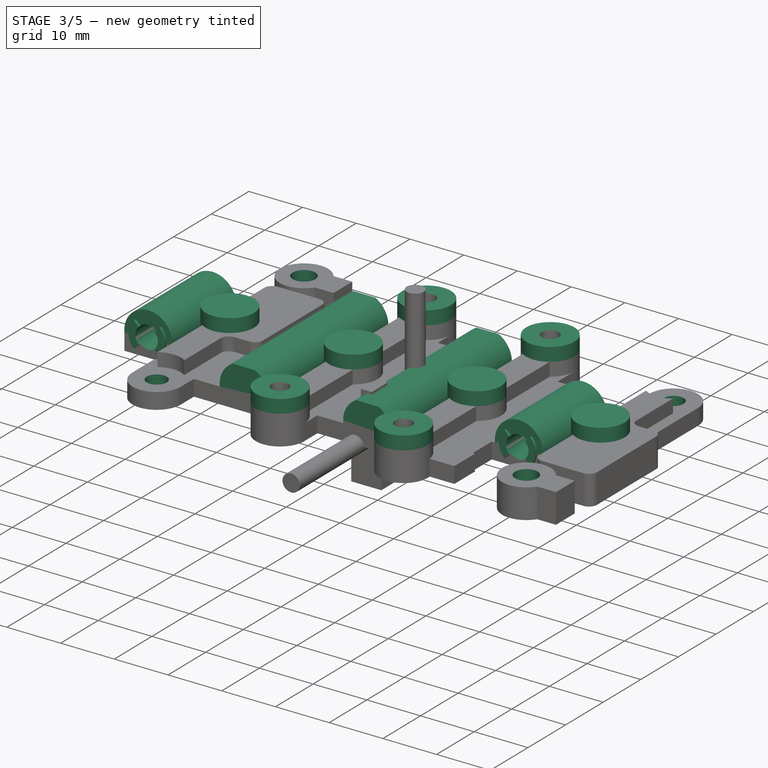
[diagram: stage 3 of 5 — iso view after this stage's code; geometry added in this stage tinted green]
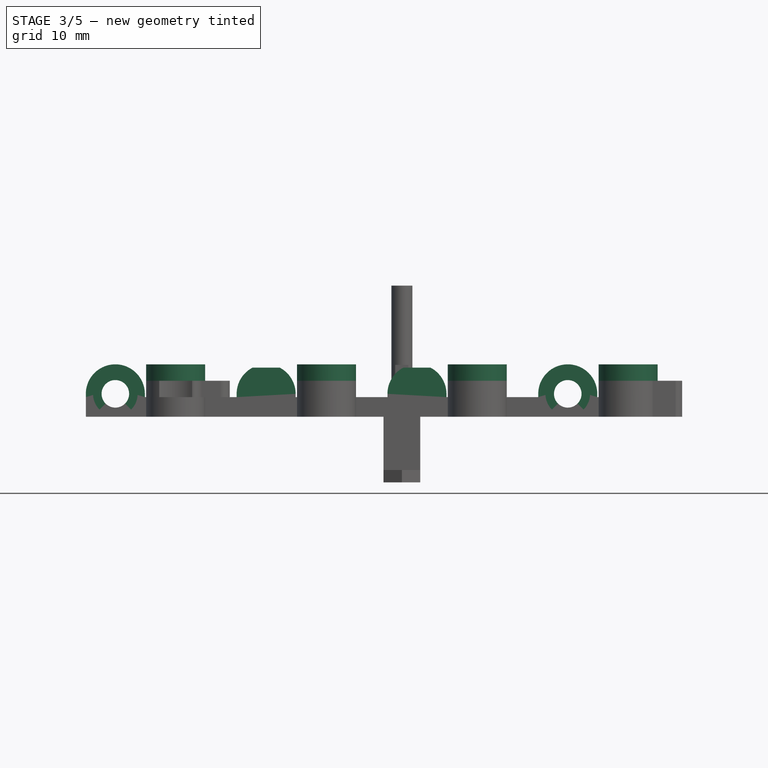
[diagram: stage 3 of 5 — front view after this stage's code; geometry added in this stage tinted green]
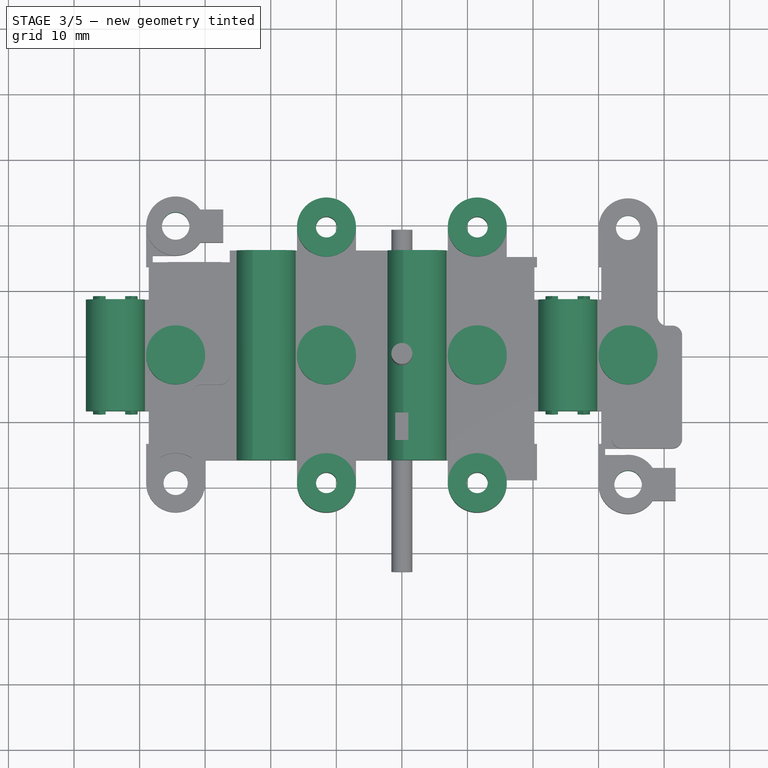
[diagram: stage 3 of 5 — top view after this stage's code; geometry added in this stage tinted green]
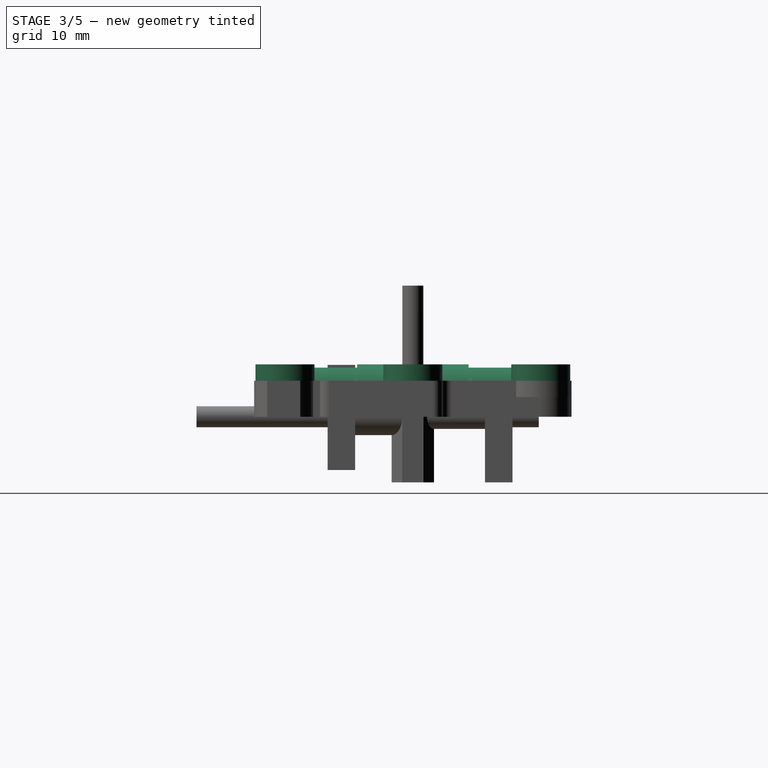
[diagram: stage 3 of 5 — right view after this stage's code; geometry added in this stage tinted green]
FEATURE [Sketcher::SketchObject] Sketch009  label="Plate_screw_tubes_sketch"
  ArcFitTolerance = 0
  AttachmentSupport = -> [Pad005]
  FullyConstrained = true
  MakeInternals = false
  MapMode = 5
  Placement = pos=(0,-8.5,0) rot=(1,0,0;1.5708rad)
  expr: Constraints[12] = <<Plate_base_sketch>>.Constraints.Leftmost_distance
  expr: Constraints[1] = Sketch001.Constraints.Right_counterpart_distance + 0.2 mm
  sketch-geometry (10):
    g0: LineSegment StartX=20.8 StartY=2.5 StartZ=0 EndX=20.8 EndY=3.5 EndZ=0
    g1: LineSegment StartX=-48.2 StartY=3.5 StartZ=0 EndX=-48.2 EndY=2.5 EndZ=0
    g2: LineSegment StartX=-39.2 StartY=3.5 StartZ=0 EndX=-39.2 EndY=2.5 EndZ=0
    g3: LineSegment StartX=-39.2 StartY=2.5 StartZ=0 EndX=-48.2 EndY=2.5 EndZ=0
    g4: LineSegment [constr] StartX=-48.2 StartY=3.5 StartZ=0 EndX=-39.2 EndY=3.5 EndZ=0
    g5: LineSegment StartX=29.8 StartY=3.5 StartZ=0 EndX=29.8 EndY=2.5 EndZ=0
    g6: LineSegment StartX=29.8 StartY=2.5 StartZ=0 EndX=20.8 EndY=2.5 EndZ=0
    g7: LineSegment [constr] StartX=20.8 StartY=3.5 StartZ=0 EndX=29.8 EndY=3.5 EndZ=0
    g8: ArcOfCircle CenterX=-43.7 CenterY=3.5 CenterZ=0 NormalX=0 NormalY=0 NormalZ=1 AngleXU=0 Radius=4.5 StartAngle=0 EndAngle=3.14159
    g9: ArcOfCircle CenterX=25.3 CenterY=3.5 CenterZ=0 NormalX=0 NormalY=0 NormalZ=1 AngleXU=0 Radius=4.5 StartAngle=0 EndAngle=3.14159
  constraints (30):
    c: Vertical(g0)
    c: DistanceX(g-2,g0) = 20.8
    c: Coincident(g1,g8)
    c: Vertical(g1)
    c: Vertical(g2)
    c: Coincident(g3,g2)
    c: Coincident(g3,g1)
    c: Horizontal(g3)
    c: Coincident(g4,g8)
    c: Horizontal(g4)
    c: Distance(g1) = 1
    c: DistanceY(g-1,g1) = 2.5
    c: DistanceX(g-2,g1) = -48.2
    c: Coincident(g9,g0)
    c: Vertical(g5)
    c: Coincident(g6,g5)
    c: Coincident(g6,g0)
    c: Horizontal(g6)
    c: Coincident(g7,g0)
    c: Horizontal(g7)
    c: PointOnObject(g0,g4)
    c: PointOnObject(g0,g3)
    c: Diameter(g8) = 9  'Diameter'
    c: Diameter(g9) = 9
    c: PointOnObject(g8,g4)
    c: Coincident(g2,g8)
    c: Coincident(g4,g2)
    c: PointOnObject(g9,g7)
    c: Coincident(g9,g5)
    c: Coincident(g7,g5)
FEATURE [PartDesign::Pad] Pad009  label="Plate_screw_tubes"
  BaseFeature = -> Pad005
  Direction = (0,-1,2e-16)
  Length = 17
  Length2 = 10
  Profile = -> Sketch009
  ReferenceAxis = -> Sketch009 [N_Axis]
  Reversed = true
  Suppressed = false
  Type = 0
  expr: Length = <<Plate_base_sketch>>.Constraints.Counterpart_tunnel_length
FEATURE [PartDesign::Body] Body064  label="Plate_spec_attach_tunnel_4"
  AllowCompound = false
  Group = -> [Clone045]
  Origin = -> Origin064
  Placement = pos=(-20.7,3e-15,3.5) rot=(0,0,1;3.14159rad)
  Tip = -> Clone045
FEATURE [Sketcher::SketchObject] Sketch  label="Plate_bottom_counterpart_pads_sketch"
  ArcFitTolerance = 0
  AttachmentSupport = -> [Pad009]
  FullyConstrained = true
  MakeInternals = false
  MapMode = 5
  Placement = pos=(0,-8.5,0) rot=(1,0,0;1.5708rad)
  expr: .Constraints.Left_center_distance = Sketch001.Constraints.Left_counterpart_tunnel_center_distance - 4.7 mm
  expr: .Constraints.Right_center_distance = Sketch001.Constraints.Right_counterpart_distance + 4.7 mm
  sketch-geometry (25):
    g0: LineSegment [constr] StartX=-43.7 StartY=3.5 StartZ=0 EndX=25.3 EndY=3.5 EndZ=0
    g1: ArcOfCircle CenterX=-43.7 CenterY=3.5 CenterZ=0 NormalX=0 NormalY=0 NormalZ=1 AngleXU=0 Radius=3.4 StartAngle=2.35619 EndAngle=3.92699
    g2: ArcOfCircle CenterX=-43.7 CenterY=3.5 CenterZ=0 NormalX=0 NormalY=0 NormalZ=1 AngleXU=0 Radius=3.4 StartAngle=5.49779 EndAngle=7.06858
    g3: LineSegment [constr] StartX=-43.7 StartY=6.9 StartZ=0 EndX=-43.7 EndY=0.1 EndZ=0
    g4: ArcOfCircle CenterX=25.3 CenterY=3.5 CenterZ=0 NormalX=0 NormalY=0 NormalZ=1 AngleXU=0 Radius=3.4 StartAngle=2.35619 EndAngle=3.92699
    g5: ArcOfCircle CenterX=25.3 CenterY=3.5 CenterZ=0 NormalX=0 NormalY=0 NormalZ=1 AngleXU=0 Radius=3.4 StartAngle=5.49779 EndAngle=7.06858
    g6: LineSegment [constr] StartX=25.3 StartY=6.9 StartZ=0 EndX=25.3 EndY=0.1 EndZ=0
    g7: ArcOfCircle CenterX=-43.7 CenterY=3.5 CenterZ=0 NormalX=0 NormalY=0 NormalZ=1 AngleXU=0 Radius=0.5 StartAngle=2.35619 EndAngle=3.92699
    g8: ArcOfCircle CenterX=-43.7 CenterY=3.5 CenterZ=0 NormalX=0 NormalY=0 NormalZ=1 AngleXU=0 Radius=0.5 StartAngle=5.49779 EndAngle=7.06858
    g9: LineSegment StartX=-46.1042 StartY=5.90416 StartZ=0 EndX=-44.0536 EndY=3.85355 EndZ=0
    g10: LineSegment StartX=-46.1042 StartY=1.09584 StartZ=0 EndX=-44.0536 EndY=3.14645 EndZ=0
    g11: LineSegment StartX=-43.3464 StartY=3.85355 StartZ=0 EndX=-41.2958 EndY=5.90416 EndZ=0
    g12: LineSegment StartX=-43.3464 StartY=3.14645 StartZ=0 EndX=-41.2958 EndY=1.09584 EndZ=0
    g13: LineSegment [constr] StartX=-46.1042 StartY=5.90416 StartZ=0 EndX=-41.2958 EndY=1.09584 EndZ=0
    g14: LineSegment [constr] StartX=-46.1042 StartY=1.09584 StartZ=0 EndX=-41.2958 EndY=5.90416 EndZ=0
    g15: LineSegment [constr] StartX=-44.0536 StartY=3.85355 StartZ=0 EndX=-43.3464 EndY=3.85355 EndZ=0
    g16: ArcOfCircle CenterX=25.3 CenterY=3.5 CenterZ=0 NormalX=0 NormalY=0 NormalZ=1 AngleXU=0 Radius=0.5 StartAngle=2.35619 EndAngle=3.92699
    g17: ArcOfCircle CenterX=25.3 CenterY=3.5 CenterZ=0 NormalX=0 NormalY=0 NormalZ=1 AngleXU=0 Radius=0.5 StartAngle=5.49779 EndAngle=7.06858
    g18: LineSegment StartX=22.8958 StartY=5.90416 StartZ=0 EndX=24.9464 EndY=3.85355 EndZ=0
    g19: LineSegment StartX=24.9464 StartY=3.14645 StartZ=0 EndX=22.8958 EndY=1.09584 EndZ=0
    g20: LineSegment StartX=25.6536 StartY=3.14645 StartZ=0 EndX=27.7042 EndY=1.09584 EndZ=0
    g21: LineSegment StartX=25.6536 StartY=3.85355 StartZ=0 EndX=27.7042 EndY=5.90416 EndZ=0
    g22: LineSegment [constr] StartX=22.8958 StartY=1.09584 StartZ=0 EndX=27.7042 EndY=5.90416 EndZ=0
    g23: LineSegment [constr] StartX=22.8958 StartY=5.90416 StartZ=0 EndX=27.7042 EndY=1.09584 EndZ=0
    g24: LineSegment [constr] StartX=24.9464 StartY=3.85355 StartZ=0 EndX=25.6536 EndY=3.85355 EndZ=0
  constraints (72):
    c: Coincident(g0,g1)
    c: Coincident(g0,g4)
    c: Horizontal(g0)
    c: DistanceY(g-1,g1) = 3.5
    c: DistanceX(g-2,g1) = -43.7  'Left_center_distance'
    c: DistanceX(g-2,g4) = 25.3  'Right_center_distance'
    c: Diameter(g1) = 6.8  'Diameter'
    c: Vertical(g3)
    c: PointOnObject(g1,g3)
    c: PointOnObject(g3,g2)
    c: PointOnObject(g3,g2)
    c: PointOnObject(g2,g1)
    c: Coincident(g1,g2)
    c: Diameter(g4) = 6.8
    c: PointOnObject(g5,g4)
    c: Coincident(g5,g4)
    c: Vertical(g6)
    c: PointOnObject(g4,g6)
    c: PointOnObject(g6,g4)
    c: PointOnObject(g6,g4)
    c: Coincident(g7,g1)
    c: Coincident(g8,g1)
    c: Coincident(g9,g1)
    c: Coincident(g9,g7)
    c: Coincident(g10,g1)
    c: Coincident(g10,g7)
    c: Coincident(g11,g8)
    c: Coincident(g11,g2)
    c: Coincident(g12,g8)
    c: Coincident(g12,g2)
    c: Coincident(g13,g1)
    c: Coincident(g13,g2)
    c: PointOnObject(g7,g13)
    c: PointOnObject(g8,g13)
    c: Coincident(g14,g1)
    c: Coincident(g14,g2)
    c: PointOnObject(g8,g14)
    c: PointOnObject(g7,g14)
    c: PointOnObject(g8,g7)
    c: Coincident(g15,g7)
    c: Coincident(g15,g8)
    c: Horizontal(g15)
    c: PointOnObject(g1,g13)
    c: PointOnObject(g1,g14)
    c: Angle(g11,g3) = 0.785398
    c: Diameter(g7) = 1
    c: Coincident(g16,g4)
    c: Coincident(g17,g4)
    c: Coincident(g18,g4)
    c: Coincident(g18,g16)
    c: Coincident(g19,g16)
    c: Coincident(g19,g4)
    c: Coincident(g20,g17)
    c: Coincident(g20,g5)
    c: Coincident(g21,g17)
    c: Coincident(g21,g5)
    c: Coincident(g22,g4)
    c: Coincident(g22,g5)
    c: Coincident(g23,g4)
    c: Coincident(g23,g5)
    c: PointOnObject(g4,g23)
    c: PointOnObject(g4,g22)
    c: PointOnObject(g16,g23)
    c: PointOnObject(g17,g23)
    c: PointOnObject(g16,g22)
    c: PointOnObject(g17,g22)
    c: Angle(g22,g6) = 0.785398
    c: PointOnObject(g17,g16)
    c: Diameter(g17) = 1
    c: Coincident(g24,g16)
    c: Coincident(g24,g17)
    c: Horizontal(g24)
FEATURE [PartDesign::Pad] Pad  label="Plate_bottom_counterpart_pads"
  BaseFeature = -> Pad009
  Direction = (0,-1,2e-16)
  Length = 0.5
  Length2 = 10
  Profile = -> Sketch
  ReferenceAxis = -> Sketch [N_Axis]
  Suppressed = false
  Type = 0
FEATURE [Sketcher::SketchObject] Sketch034  label="Plate_top_counterpart_pads_sketch"
  ArcFitTolerance = 0
  AttachmentSupport = -> [Pad]
  FullyConstrained = true
  MakeInternals = false
  MapMode = 5
  Placement = pos=(0,8.5,0) rot=(0,0.707107,0.707107;3.14159rad)
  expr: Constraints[3] = -Sketch.Constraints.Right_center_distance
  expr: Constraints[4] = -Sketch.Constraints.Left_center_distance
  sketch-geometry (23):
    g0: LineSegment [constr] StartX=-25.3 StartY=3.5 StartZ=0 EndX=43.7 EndY=3.5 EndZ=0
    g1: ArcOfCircle CenterX=-25.3 CenterY=3.5 CenterZ=0 NormalX=0 NormalY=0 NormalZ=1 AngleXU=0 Radius=3.4 StartAngle=2.35619 EndAngle=3.92699
    g2: ArcOfCircle CenterX=-25.3 CenterY=3.5 CenterZ=0 NormalX=0 NormalY=0 NormalZ=1 AngleXU=0 Radius=3.4 StartAngle=5.49779 EndAngle=7.06858
    g3: ArcOfCircle CenterX=-25.3 CenterY=3.5 CenterZ=0 NormalX=0 NormalY=0 NormalZ=1 AngleXU=0 Radius=0.5 StartAngle=2.35619 EndAngle=3.92699
    g4: ArcOfCircle CenterX=-25.3 CenterY=3.5 CenterZ=0 NormalX=0 NormalY=0 NormalZ=1 AngleXU=0 Radius=0.5 StartAngle=5.49779 EndAngle=7.06858
    g5: LineSegment StartX=-27.7042 StartY=5.90416 StartZ=0 EndX=-25.6536 EndY=3.85355 EndZ=0
    g6: LineSegment StartX=-24.9464 StartY=3.85355 StartZ=0 EndX=-22.8958 EndY=5.90416 EndZ=0
    g7: LineSegment StartX=-27.7042 StartY=1.09584 StartZ=0 EndX=-25.6536 EndY=3.14645 EndZ=0
    g8: LineSegment StartX=-24.9464 StartY=3.14645 StartZ=0 EndX=-22.8958 EndY=1.09584 EndZ=0
    g9: LineSegment [constr] StartX=-27.7042 StartY=5.90416 StartZ=0 EndX=-22.8958 EndY=1.09584 EndZ=0
    g10: LineSegment [constr] StartX=-27.7042 StartY=1.09584 StartZ=0 EndX=-22.8958 EndY=5.90416 EndZ=0
    g11: LineSegment [constr] StartX=-25.6536 StartY=3.85355 StartZ=0 EndX=-24.9464 EndY=3.85355 EndZ=0
    g12: ArcOfCircle CenterX=43.7 CenterY=3.5 CenterZ=0 NormalX=0 NormalY=0 NormalZ=1 AngleXU=0 Radius=3.4 StartAngle=2.35619 EndAngle=3.92699
    g13: ArcOfCircle CenterX=43.7 CenterY=3.5 CenterZ=0 NormalX=0 NormalY=0 NormalZ=1 AngleXU=0 Radius=3.4 StartAngle=5.49779 EndAngle=7.06858
    g14: LineSegment StartX=41.2958 StartY=5.90416 StartZ=0 EndX=43.3464 EndY=3.85355 EndZ=0
    g15: ArcOfCircle CenterX=43.7 CenterY=3.5 CenterZ=0 NormalX=0 NormalY=0 NormalZ=1 AngleXU=0 Radius=0.5 StartAngle=2.35619 EndAngle=3.92699
    g16: ArcOfCircle CenterX=43.7 CenterY=3.5 CenterZ=0 NormalX=0 NormalY=0 NormalZ=1 AngleXU=0 Radius=0.5 StartAngle=5.49779 EndAngle=7.06858
    g17: LineSegment StartX=44.0536 StartY=3.85355 StartZ=0 EndX=46.1042 EndY=5.90416 EndZ=0
    g18: LineSegment StartX=44.0536 StartY=3.14645 StartZ=0 EndX=46.1042 EndY=1.09584 EndZ=0
    g19: LineSegment StartX=41.2958 StartY=1.09584 StartZ=0 EndX=43.3464 EndY=3.14645 EndZ=0
    g20: LineSegment [constr] StartX=41.2958 StartY=5.90416 StartZ=0 EndX=46.1042 EndY=1.09584 EndZ=0
    g21: LineSegment [constr] StartX=41.2958 StartY=1.09584 StartZ=0 EndX=46.1042 EndY=5.90416 EndZ=0
    g22: LineSegment [constr] StartX=43.3464 StartY=3.85355 StartZ=0 EndX=44.0536 EndY=3.85355 EndZ=0
  constraints (64):
    c: Coincident(g0,g1)
    c: Coincident(g0,g12)
    c: Horizontal(g0)
    c: DistanceX(g-2,g1) = -25.3
    c: DistanceX(g-2,g12) = 43.7
    c: DistanceY(g-1,g12) = 3.5
    c: Diameter(g1) = 6.8  'Diameter'
    c: Coincident(g3,g1)
    c: Coincident(g4,g1)
    c: Coincident(g5,g1)
    c: Coincident(g5,g3)
    c: Coincident(g6,g4)
    c: Coincident(g6,g2)
    c: Coincident(g7,g1)
    c: Coincident(g7,g3)
    c: Coincident(g8,g4)
    c: Coincident(g8,g2)
    c: Coincident(g9,g1)
    c: Coincident(g9,g2)
    c: Coincident(g10,g1)
    c: Coincident(g10,g2)
    c: PointOnObject(g4,g10)
    c: PointOnObject(g2,g10)
    c: Coincident(g2,g1)
    c: PointOnObject(g1,g9)
    c: PointOnObject(g3,g9)
    c: PointOnObject(g4,g9)
    c: PointOnObject(g3,g10)
    c: PointOnObject(g2,g1)
    c: Coincident(g11,g3)
    c: Coincident(g11,g4)
    c: Horizontal(g11)
    c: PointOnObject(g4,g3)
    c: Diameter(g4) = 1
    c: Angle(g0,g6) = 0.785398
    c: Diameter(g12) = 6.8
    c: Coincident(g14,g12)
    c: Coincident(g15,g12)
    c: Coincident(g15,g14)
    c: Coincident(g16,g12)
    c: Coincident(g17,g16)
    c: Coincident(g17,g13)
    c: Coincident(g18,g16)
    c: Coincident(g18,g13)
    c: Coincident(g19,g12)
    c: Coincident(g19,g15)
    c: PointOnObject(g13,g12)
    c: Coincident(g13,g12)
    c: Coincident(g20,g12)
    c: Coincident(g20,g13)
    c: Coincident(g21,g12)
    c: Coincident(g21,g13)
    c: PointOnObject(g12,g21)
    c: PointOnObject(g12,g20)
    c: PointOnObject(g14,g20)
    c: PointOnObject(g16,g20)
    c: PointOnObject(g15,g21)
    c: PointOnObject(g16,g21)
    c: PointOnObject(g16,g15)
    c: Coincident(g22,g14)
    c: Coincident(g22,g16)
    c: Horizontal(g22)
    c: Angle(g14,g0) = 0.785398
    c: Diameter(g16) = 1
FEATURE [PartDesign::Pad] Pad033  label="Plate_top_counterpart_pads"
  BaseFeature = -> Pad
  Direction = (0,1,-2e-16)
  Length = 0.5
  Length2 = 10
  Profile = -> Sketch034
  ReferenceAxis = -> Sketch034 [N_Axis]
  Suppressed = false
  Type = 0
FEATURE [Sketcher::SketchObject] Sketch035  label="Plate_top_caps_sketch"
  ArcFitTolerance = 0
  AttachmentSupport = -> [Pad033]
  FullyConstrained = true
  MakeInternals = false
  MapMode = 5
  Placement = pos=(0,0,5.5) rot=(0,0,1;0rad)
  expr: .Constraints.Attachment_point_distance = <<Plate_base_sketch>>.Constraints.Attachment_point_distance
  expr: Constraints[10] = .Constraints.Diameter
  expr: Constraints[26] = Sketch001.Constraints.Vertical_bearing_center_distance
  expr: Constraints[27] = -Sketch001.Constraints.Vertical_bearing_center_distance
  expr: Constraints[28] = .Constraints.Diameter
  expr: Constraints[29] = <<Plate_base_sketch>>.Constraints.Horinzontal_bearing_center_distance
  expr: Constraints[30] = -<<Plate_base_sketch>>.Constraints.Horinzontal_bearing_center_distance
  expr: Constraints[31] = .Constraints.Attachment_point_distance
  expr: Constraints[5] = .Constraints.Diameter
  expr: Constraints[6] = .Constraints.Diameter
  expr: Constraints[7] = .Constraints.Diameter
  expr: Constraints[8] = .Constraints.Diameter
  expr: Constraints[9] = .Constraints.Diameter
  sketch-geometry (12):
    g0: Circle CenterX=-34.5 CenterY=0 CenterZ=0 NormalX=0 NormalY=0 NormalZ=1 AngleXU=0 Radius=4.5
    g1: Circle CenterX=-11.5 CenterY=-19.5 CenterZ=0 NormalX=0 NormalY=0 NormalZ=1 AngleXU=0 Radius=4.5
    g2: Circle CenterX=11.5 CenterY=-19.5 CenterZ=0 NormalX=0 NormalY=0 NormalZ=1 AngleXU=0 Radius=4.5
    g3: Circle CenterX=34.5 CenterY=0 CenterZ=0 NormalX=0 NormalY=0 NormalZ=1 AngleXU=0 Radius=4.5
    g4: Circle CenterX=11.5 CenterY=19.5 CenterZ=0 NormalX=0 NormalY=0 NormalZ=1 AngleXU=0 Radius=4.5
    g5: Circle CenterX=11.5 CenterY=0 CenterZ=0 NormalX=0 NormalY=0 NormalZ=1 AngleXU=0 Radius=4.5
    g6: Circle CenterX=-11.5 CenterY=0 CenterZ=0 NormalX=0 NormalY=0 NormalZ=1 AngleXU=0 Radius=4.5
    g7: Circle CenterX=-11.5 CenterY=19.5 CenterZ=0 NormalX=0 NormalY=0 NormalZ=1 AngleXU=0 Radius=4.5
    g8: LineSegment [constr] StartX=-11.5 StartY=19.5 StartZ=0 EndX=-11.5 EndY=-19.5 EndZ=0
    g9: LineSegment [constr] StartX=11.5 StartY=-19.5 StartZ=0 EndX=11.5 EndY=19.5 EndZ=0
    g10: LineSegment [constr] StartX=-11.5 StartY=-19.5 StartZ=0 EndX=11.5 EndY=-19.5 EndZ=0
    g11: LineSegment [constr] StartX=-11.5 StartY=19.5 StartZ=0 EndX=11.5 EndY=19.5 EndZ=0
  constraints (32):
    c: PointOnObject(g0,g-1)
    c: PointOnObject(g3,g-1)
    c: PointOnObject(g5,g-1)
    c: PointOnObject(g6,g-1)
    c: Diameter(g0) = 9  'Diameter'
    c: Diameter(g6) = 9
    c: Diameter(g5) = 9
    c: Diameter(g3) = 9
    c: Diameter(g4) = 9
    c: Diameter(g7) = 9
    c: Diameter(g1) = 9
    c: Coincident(g8,g7)
    c: Coincident(g8,g1)
    c: Vertical(g8)
    c: Coincident(g9,g2)
    c: Coincident(g9,g4)
    c: Vertical(g9)
    c: PointOnObject(g6,g8)
    c: PointOnObject(g5,g9)
    c: DistanceX(g1,g2) = 23  'Attachment_point_distance'
    c: Coincident(g10,g1)
    c: Coincident(g10,g2)
    c: Horizontal(g10)
    c: Coincident(g11,g7)
    c: Coincident(g11,g4)
    c: Horizontal(g11)
    c: DistanceY(g-1,g7) = 19.5
    c: DistanceY(g-1,g1) = -19.5
    c: Diameter(g2) = 9
    c: DistanceX(g-2,g3) = 34.5
    c: DistanceX(g-2,g0) = -34.5
    c: Distance(g6,g0) = 23
FEATURE [PartDesign::Pad] Pad034  label="Plate_top_caps"
  BaseFeature = -> Pad033
  Direction = (0,0,1)
  Length = 2.5
  Length2 = 10
  Profile = -> Sketch035
  ReferenceAxis = -> Sketch035 [N_Axis]
  Suppressed = false
  Type = 0
  expr: Length = 2.5 mm
FEATURE [PartDesign::Body] Body009  label="Plate_bottom_adjust_screw_cutout"
  AllowCompound = false
  Group = -> [Clone004]
  Origin = -> Origin009
  Placement = pos=(39,-22.2,2.75) rot=(0,0,1;0rad)
  Tip = -> Clone004
  expr: .Placement.Base.y = Sketch001.Constraints.Bottom_adjust_screw_offset
FEATURE [Sketcher::SketchObject] Sketch039  label="Plate_counterpart_shells_sketch"
  ArcFitTolerance = 0
  AttachmentSupport = -> [Pad034]
  FullyConstrained = true
  MakeInternals = false
  MapMode = 5
  Placement = pos=(0,-16,0) rot=(1,0,0;1.5708rad)
  expr: Constraints[24] = <<Plate_base>>.Length - 0.5 mm
  sketch-geometry (14):
    g0: LineSegment [constr] StartX=-25.2 StartY=3.5 StartZ=0 EndX=-16.2 EndY=3.5 EndZ=0
    g1: LineSegment [constr] StartX=-2.2 StartY=3.5 StartZ=0 EndX=6.8 EndY=3.5 EndZ=0
    g2: LineSegment StartX=-25.2 StartY=3.5 StartZ=0 EndX=-25.2 EndY=2.5 EndZ=0
    g3: LineSegment StartX=-16.2 StartY=3.5 StartZ=0 EndX=-16.2 EndY=2.5 EndZ=0
    g4: LineSegment StartX=-16.2 StartY=2.5 StartZ=0 EndX=-25.2 EndY=2.5 EndZ=0
    g5: LineSegment StartX=-2.2 StartY=3.5 StartZ=0 EndX=-2.2 EndY=2.5 EndZ=0
    g6: LineSegment StartX=6.8 StartY=3.5 StartZ=0 EndX=6.8 EndY=2.5 EndZ=0
    g7: LineSegment StartX=6.8 StartY=2.5 StartZ=0 EndX=-2.2 EndY=2.5 EndZ=0
    g8: ArcOfCircle CenterX=-20.7 CenterY=3.5 CenterZ=0 NormalX=0 NormalY=0 NormalZ=1 AngleXU=0 Radius=4.5 StartAngle=2.04668 EndAngle=3.14159
    g9: ArcOfCircle CenterX=-20.7 CenterY=3.5 CenterZ=0 NormalX=0 NormalY=0 NormalZ=1 AngleXU=0 Radius=4.5 StartAngle=0 EndAngle=1.09491
    g10: LineSegment StartX=-22.7616 StartY=7.5 StartZ=0 EndX=-18.6384 EndY=7.5 EndZ=0
    g11: ArcOfCircle CenterX=2.3 CenterY=3.5 CenterZ=0 NormalX=0 NormalY=0 NormalZ=1 AngleXU=0 Radius=4.5 StartAngle=2.04668 EndAngle=3.14159
    g12: ArcOfCircle CenterX=2.3 CenterY=3.5 CenterZ=0 NormalX=0 NormalY=0 NormalZ=1 AngleXU=0 Radius=4.5 StartAngle=0 EndAngle=1.09491
    g13: LineSegment StartX=0.238447 StartY=7.5 StartZ=0 EndX=4.36155 EndY=7.5 EndZ=0
  constraints (42):
    c: Coincident(g0,g8)
    c: Coincident(g0,g9)
    c: Horizontal(g0)
    c: Coincident(g1,g11)
    c: Coincident(g1,g12)
    c: Horizontal(g1)
    c: PointOnObject(g9,g0)
    c: PointOnObject(g12,g1)
    c: Coincident(g2,g8)
    c: Vertical(g2)
    c: Coincident(g3,g9)
    c: Vertical(g3)
    c: Coincident(g4,g3)
    c: Coincident(g4,g2)
    c: Horizontal(g4)
    c: Coincident(g5,g11)
    c: Vertical(g5)
    c: Coincident(g6,g12)
    c: Vertical(g6)
    c: Coincident(g7,g6)
    c: Coincident(g7,g5)
    c: Horizontal(g7)
    c: PointOnObject(g11,g0)
    c: PointOnObject(g5,g4)
    c: DistanceY(g-1,g2) = 2.5
    c: DistanceY(g-1,g8) = 3.5  'Vertical_center_distance'
    c: DistanceX(g-2,g9) = -20.7  'Left_center_distance'
    c: DistanceX(g-2,g12) = 2.3  'Right_center_distance'
    c: Coincident(g9,g8)
    c: Diameter(g8) = 9  'Diameter'
    c: Coincident(g10,g8)
    c: Coincident(g10,g9)
    c: Horizontal(g10)
    c: PointOnObject(g9,g8)
    c: DistanceY(g8,g8) = 4
    c: Coincident(g12,g11)
    c: Diameter(g11) = 9
    c: Coincident(g13,g11)
    c: Coincident(g13,g12)
    c: Horizontal(g13)
    c: PointOnObject(g12,g11)
    c: PointOnObject(g11,g10)
FEATURE [PartDesign::Pad] Pad035  label="Plate_counterpart_shells"
  BaseFeature = -> Pad034
  Direction = (0,-1,2e-16)
  Length = 32
  Length2 = 10
  Profile = -> Sketch039
  ReferenceAxis = -> Sketch039 [N_Axis]
  Reversed = true
  Suppressed = false
  Type = 0
  expr: Length = Sketch001.Constraints.Vertical_plane_center_distance * 2
FEATURE [Sketcher::SketchObject] Sketch036  label="Plate_counterpart_pad_tunnels_sketch"
  ArcFitTolerance = 0
  AttachmentSupport = -> [Pad035]
  FullyConstrained = true
  MakeInternals = false
  MapMode = 5
  Placement = pos=(0,-16,0) rot=(1,0,0;1.5708rad)
  expr: .Constraints.Diameter = 4 mm + Spreadsheet.B1 * 2
  expr: Constraints[5] = .Constraints.Diameter
  expr: Constraints[6] = Sketch.Constraints.Left_center_distance
  expr: Constraints[7] = Sketch.Constraints.Right_center_distance
  sketch-geometry (3):
    g0: Circle CenterX=-43.7 CenterY=3.5 CenterZ=0 NormalX=0 NormalY=0 NormalZ=1 AngleXU=0 Radius=2.1
    g1: Circle CenterX=25.3 CenterY=3.5 CenterZ=0 NormalX=0 NormalY=0 NormalZ=1 AngleXU=0 Radius=2.1
    g2: LineSegment [constr] StartX=-43.7 StartY=3.5 StartZ=0 EndX=25.3 EndY=3.5 EndZ=0
  constraints (8):
    c: Coincident(g2,g0)
    c: Coincident(g2,g1)
    c: Horizontal(g2)
    c: DistanceY(g-1,g0) = 3.5
    c: Diameter(g0) = 4.2  'Diameter'
    c: Diameter(g1) = 4.2
    c: DistanceX(g-2,g0) = -43.7
    c: DistanceX(g-2,g1) = 25.3
FEATURE [PartDesign::Pocket] Pocket  label="Plate_counterpart_pad_tunnels"
  BaseFeature = -> Pad035
  Direction = (0,1,-2e-16)
  Length = 5
  Length2 = 5
  Profile = -> Sketch036
  ReferenceAxis = -> Sketch036 [N_Axis]
  Suppressed = false
  Type = 1
FEATURE [Sketcher::SketchObject] Sketch037  label="Plate_through_holes_sketch"
  ArcFitTolerance = 0
  AttachmentSupport = -> [Pocket]
  FullyConstrained = true
  MakeInternals = false
  MapMode = 5
  Placement = pos=(0,0,0) rot=(1,0,0;3.14159rad)
  expr: .Constraints.Counterpart_screw_hole_dia = 3.5 mm + Spreadsheet.B1 * 2
  expr: .Constraints.Horizontal_distance = Sketch001.Constraints.Attachment_point_distance
  expr: .Constraints.Large_dia = 4 mm + Spreadsheet.B1 * 2
  expr: .Constraints.Small_dia = 3 mm + Spreadsheet.B1 * 2
  expr: .Constraints.Stationary_distance = Sketch001.Constraints.Stationary_bearing_flap_center_distance
  expr: Constraints[19] = .Constraints.Horizontal_distance
  expr: Constraints[20] = .Constraints.Horizontal_distance
  expr: Constraints[21] = -Sketch001.Constraints.Vertical_adjust_center_distance
  expr: Constraints[22] = Sketch001.Constraints.Vertical_adjust_center_distance
  expr: Constraints[24] = Sketch001.Constraints.Vertical_bearing_center_distance
  expr: Constraints[25] = -Sketch001.Constraints.Vertical_bearing_center_distance
  expr: Constraints[26] = .Constraints.Counterpart_screw_hole_dia
  expr: Constraints[2] = .Constraints.Large_dia
  expr: Constraints[35] = -.Constraints.Stationary_distance
  expr: Constraints[3] = .Constraints.Small_dia
  expr: Constraints[4] = .Constraints.Small_dia
  expr: Constraints[5] = .Constraints.Small_dia
  sketch-geometry (14):
    g0: Circle CenterX=-11.5 CenterY=19.5 CenterZ=0 NormalX=0 NormalY=0 NormalZ=1 AngleXU=0 Radius=1.6
    g1: Circle CenterX=11.5 CenterY=19.5 CenterZ=0 NormalX=0 NormalY=0 NormalZ=1 AngleXU=0 Radius=1.6
    g2: Circle CenterX=34.5 CenterY=19.7 CenterZ=0 NormalX=0 NormalY=0 NormalZ=1 AngleXU=0 Radius=2.1
    g3: Circle CenterX=-34.5 CenterY=-19.7 CenterZ=0 NormalX=0 NormalY=0 NormalZ=1 AngleXU=0 Radius=2.1
    g4: Circle CenterX=-11.5 CenterY=-19.5 CenterZ=0 NormalX=0 NormalY=0 NormalZ=1 AngleXU=0 Radius=1.6
    g5: Circle CenterX=11.5 CenterY=-19.5 CenterZ=0 NormalX=0 NormalY=0 NormalZ=1 AngleXU=0 Radius=1.6
    g6: LineSegment [constr] StartX=-11.5 StartY=19.5 StartZ=0 EndX=-11.5 EndY=-19.5 EndZ=0
    g7: LineSegment [constr] StartX=11.5 StartY=-19.5 StartZ=0 EndX=11.5 EndY=19.5 EndZ=0
    g8: LineSegment [constr] StartX=-11.5 StartY=19.5 StartZ=0 EndX=11.5 EndY=19.5 EndZ=0
    g9: LineSegment [constr] StartX=-11.5 StartY=-19.5 StartZ=0 EndX=11.5 EndY=-19.5 EndZ=0
    g10: Circle CenterX=-34.5 CenterY=19.45 CenterZ=0 NormalX=0 NormalY=0 NormalZ=1 AngleXU=0 Radius=1.85
    g11: Circle CenterX=34.5 CenterY=-19.45 CenterZ=0 NormalX=0 NormalY=0 NormalZ=1 AngleXU=0 Radius=1.85
    g12: LineSegment [constr] StartX=34.5 StartY=19.7 StartZ=0 EndX=34.5 EndY=-19.45 EndZ=0
    g13: LineSegment [constr] StartX=-34.5 StartY=19.45 StartZ=0 EndX=-34.5 EndY=-19.7 EndZ=0
  constraints (36):
    c: Diameter(g0) = 3.2  'Small_dia'
    c: Diameter(g2) = 4.2  'Large_dia'
    c: Diameter(g3) = 4.2
    c: Diameter(g1) = 3.2
    c: Diameter(g5) = 3.2
    c: Diameter(g4) = 3.2
    c: Coincident(g6,g0)
    c: Coincident(g6,g4)
    c: Vertical(g6)
    c: Coincident(g7,g5)
    c: Coincident(g7,g1)
    c: Vertical(g7)
    c: Coincident(g8,g0)
    c: Coincident(g8,g1)
    c: Horizontal(g8)
    c: Coincident(g9,g4)
    c: Coincident(g9,g5)
    c: Horizontal(g9)
    c: DistanceX(g3,g4) = 23  'Horizontal_distance'
    c: DistanceX(g4,g5) = 23
    c: DistanceX(g1,g2) = 23
    c: DistanceY(g-1,g3) = -19.7
    c: DistanceY(g-1,g2) = 19.7
    c: DistanceX(g-2,g2) = 34.5
    c: DistanceY(g-1,g1) = 19.5
    c: DistanceY(g-1,g5) = -19.5
    c: Diameter(g11) = 3.7
    c: Diameter(g10) = 3.7  'Counterpart_screw_hole_dia'
    c: Coincident(g12,g2)
    c: Coincident(g12,g11)
    c: Vertical(g12)
    c: Coincident(g13,g10)
    c: Coincident(g13,g3)
    c: Vertical(g13)
    c: DistanceY(g-1,g10) = 19.45  'Stationary_distance'
    c: DistanceY(g-1,g11) = -19.45
FEATURE [PartDesign::Pocket] Pocket001  label="Plate_through_holes"
  BaseFeature = -> Pocket
  Direction = (0,0,1)
  Length = 5
  Length2 = 5
  Profile = -> Sketch037
  ReferenceAxis = -> Sketch037 [N_Axis]
  Suppressed = false
  Type = 1
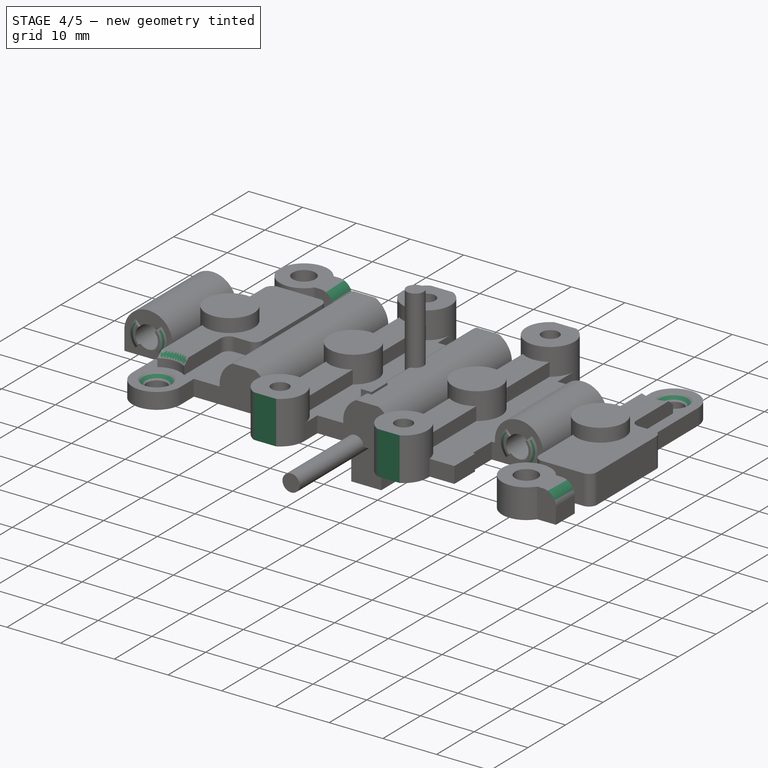
[diagram: stage 4 of 5 — iso view after this stage's code; geometry added in this stage tinted green]
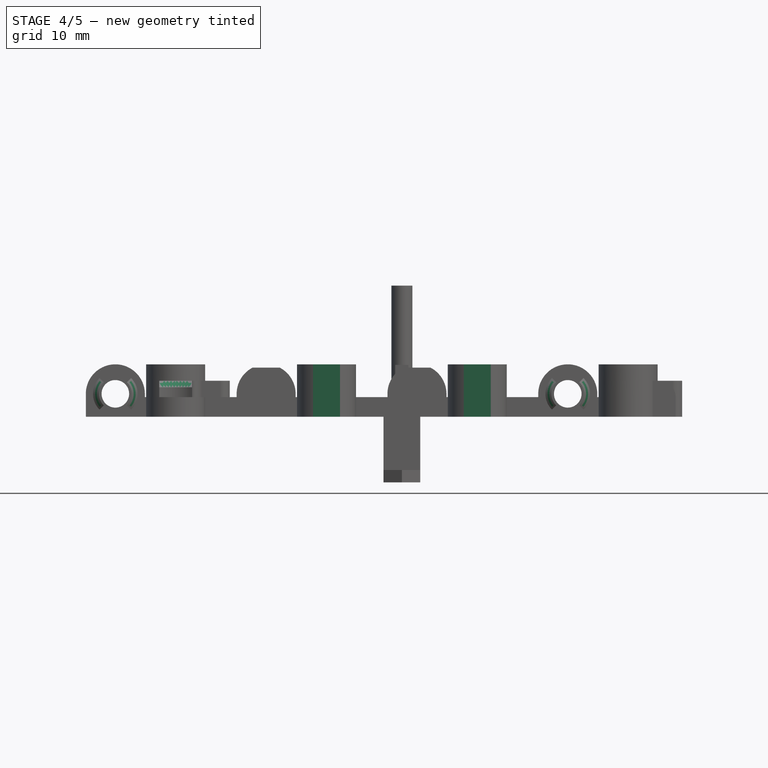
[diagram: stage 4 of 5 — front view after this stage's code; geometry added in this stage tinted green]
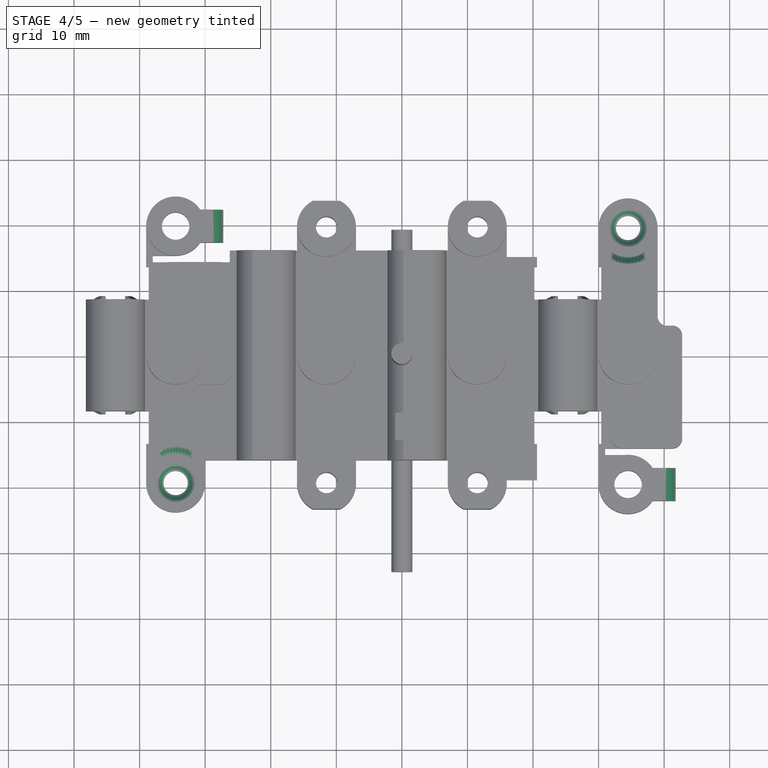
[diagram: stage 4 of 5 — top view after this stage's code; geometry added in this stage tinted green]
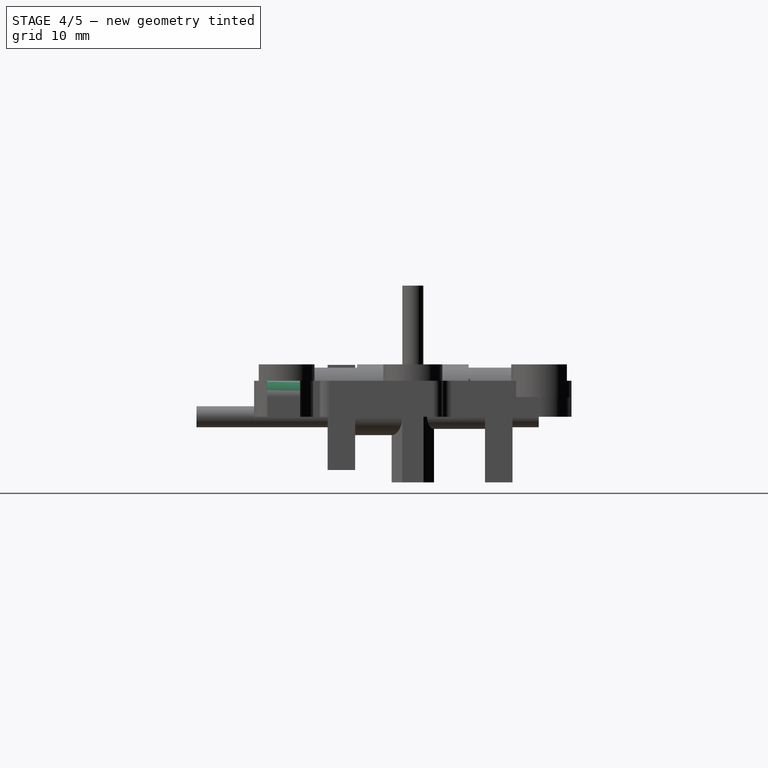
[diagram: stage 4 of 5 — right view after this stage's code; geometry added in this stage tinted green]
FEATURE [PartDesign::Body] Body061  label="Plate_spec_attach_tunnel_1"
  AllowCompound = false
  Group = -> [Clone042]
  Origin = -> Origin061
  Placement = pos=(2.3,0,3.5) rot=(0,0,1;0rad)
  Tip = -> Clone042
FEATURE [PartDesign::FeatureBase] Clone043
  BaseFeature = -> Body060
  Suppressed = false
FEATURE [PartDesign::Body] Body062  label="Plate_spec_attach_tunnel_2"
  AllowCompound = false
  Group = -> [Clone043]
  Origin = -> Origin062
  Placement = pos=(-20.7,0,3.5) rot=(0,0,1;0rad)
  Tip = -> Clone043
FEATURE [PartDesign::FeatureBase] Clone044
  BaseFeature = -> Body060
  Suppressed = false
FEATURE [PartDesign::Body] Body063  label="Plate_spec_attach_tunnel_3"
  AllowCompound = false
  Group = -> [Clone044]
  Origin = -> Origin063
  Placement = pos=(2.3,0,3.5) rot=(0,0,1;3.14159rad)
  Tip = -> Clone044
FEATURE [PartDesign::FeatureBase] Clone045
  BaseFeature = -> Body060
  Suppressed = false
FEATURE [PartDesign::FeatureBase] Clone004
  BaseFeature = -> Body008
  Suppressed = false
FEATURE [Sketcher::SketchObject] Sketch040  label="Plate_attachment_point_chamfers_sketch"
  ArcFitTolerance = 0
  AttachmentSupport = -> [Pocket001]
  FullyConstrained = true
  MakeInternals = false
  MapMode = 5
  Placement = pos=(0,0,8) rot=(0,0,1;0rad)
  expr: .Constraints.Vertical_distance = <<Plate_base_sketch>>.Constraints.Vertical_bearing_center_distance + 4 mm
  expr: Constraints[19] = -.Constraints.Vertical_distance
  expr: Constraints[20] = .Constraints.Vertical_distance + 5 mm
  expr: Constraints[21] = -.Constraints.Vertical_distance - 5 mm
  sketch-geometry (8):
    g0: LineSegment StartX=-16 StartY=-23.5 StartZ=0 EndX=16 EndY=-23.5 EndZ=0
    g1: LineSegment StartX=16 StartY=-23.5 StartZ=0 EndX=16 EndY=-28.5 EndZ=0
    g2: LineSegment StartX=16 StartY=-28.5 StartZ=0 EndX=-16 EndY=-28.5 EndZ=0
    g3: LineSegment StartX=-16 StartY=-28.5 StartZ=0 EndX=-16 EndY=-23.5 EndZ=0
    g4: LineSegment StartX=-16 StartY=28.5 StartZ=0 EndX=16 EndY=28.5 EndZ=0
    g5: LineSegment StartX=16 StartY=28.5 StartZ=0 EndX=16 EndY=23.5 EndZ=0
    g6: LineSegment StartX=16 StartY=23.5 StartZ=0 EndX=-16 EndY=23.5 EndZ=0
    g7: LineSegment StartX=-16 StartY=23.5 StartZ=0 EndX=-16 EndY=28.5 EndZ=0
  constraints (24):
    c: Coincident(g0,g1)
    c: Coincident(g1,g2)
    c: Coincident(g2,g3)
    c: Coincident(g3,g0)
    c: Horizontal(g0)
    c: Horizontal(g2)
    c: Vertical(g1)
    c: Vertical(g3)
    c: Coincident(g4,g5)
    c: Coincident(g5,g6)
    c: Coincident(g6,g7)
    c: Coincident(g7,g4)
    c: Horizontal(g4)
    c: Horizontal(g6)
    c: Vertical(g5)
    c: Vertical(g7)
    c: PointOnObject(g0,g7)
    c: PointOnObject(g0,g5)
    c: DistanceY(g-1,g6) = 23.5  'Vertical_distance'
    c: DistanceY(g-1,g0) = -23.5
    c: DistanceY(g-1,g4) = 28.5
    c: DistanceY(g-1,g2) = -28.5
    c: DistanceX(g-2,g6) = -16
    c: DistanceX(g-2,g5) = 16
FEATURE [PartDesign::Pocket] Pocket002  label="Plate_attachment_point_chamfers"
  BaseFeature = -> Pocket001
  Direction = (0,0,-1)
  Length = 5
  Length2 = 5
  Profile = -> Sketch040
  ReferenceAxis = -> Sketch040 [N_Axis]
  Suppressed = false
  Type = 1
FEATURE [PartDesign::Chamfer] Chamfer  label="Plate_bearing_spacer_chamfers"
  Angle = 45
  Base = -> Pocket002 [Edge537,Edge513,Edge486,Edge479,Edge429,Edge453,Edge554,Edge547]
  BaseFeature = -> Pocket002
  ChamferType = 1
  FlipDirection = false
  Size = 0.49
  Size2 = 0.9
  SupportTransform = false
  Suppressed = false
  UseAllEdges = false
FEATURE [PartDesign::Chamfer] Chamfer001  label="Plate_bearing_screw_chamfers"
  Angle = 45
  Base = -> Chamfer [Edge603,Edge392,Edge420,Edge169]
  BaseFeature = -> Chamfer
  ChamferType = 0
  FlipDirection = false
  Size = 1
  Size2 = 1
  SupportTransform = false
  Suppressed = false
  UseAllEdges = false
FEATURE [PartDesign::Fillet] Fillet  label="Plate_adjust_lever_fillets"
  Base = -> Chamfer001 [Edge591,Edge262]
  BaseFeature = -> Chamfer001
  Radius = 2.49
  SupportTransform = false
  Suppressed = false
  UseAllEdges = false
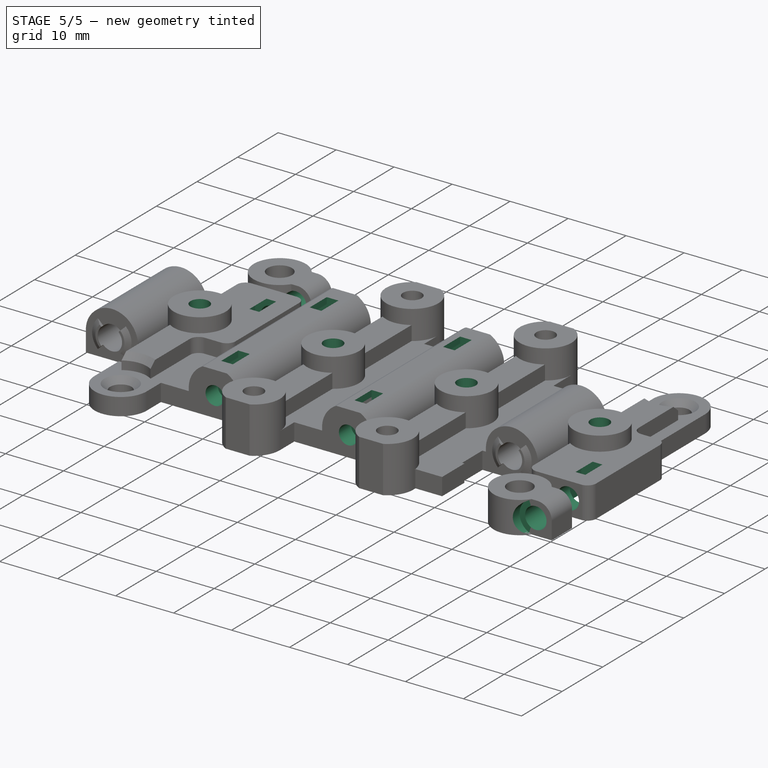
[diagram: stage 5 of 5 — iso view after this stage's code; geometry added in this stage tinted green]
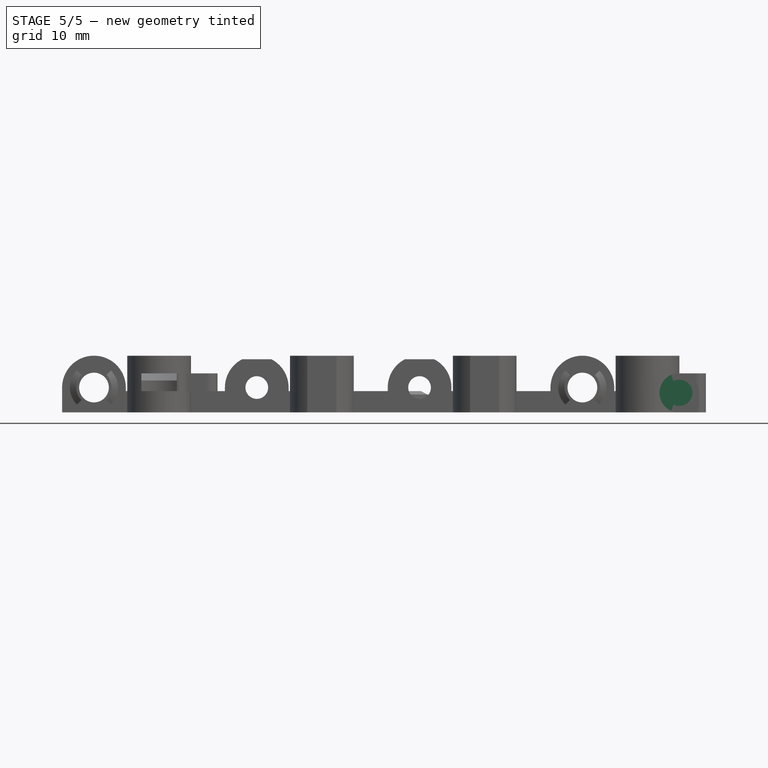
[diagram: stage 5 of 5 — front view after this stage's code; geometry added in this stage tinted green]
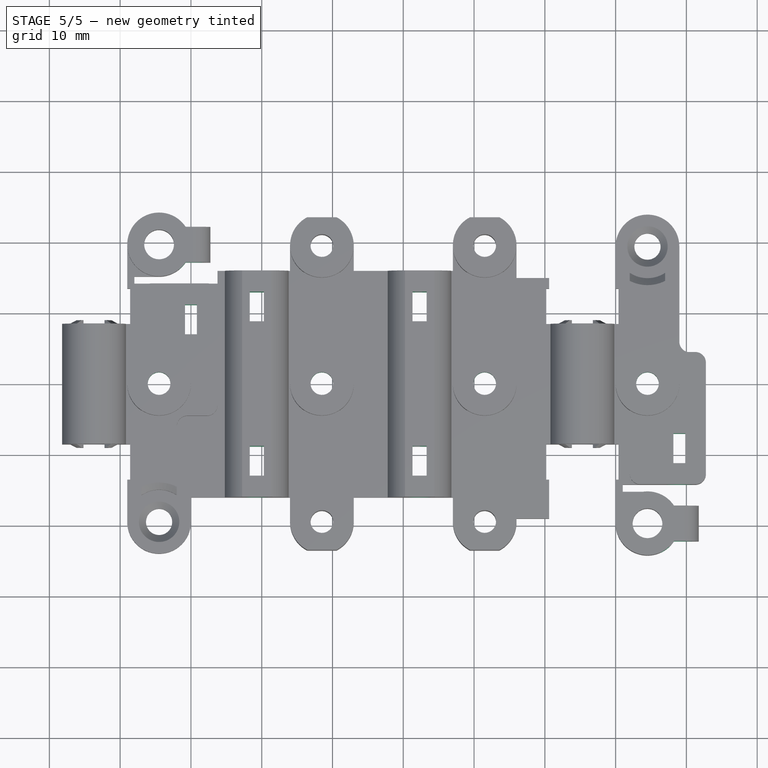
[diagram: stage 5 of 5 — top view after this stage's code; geometry added in this stage tinted green]
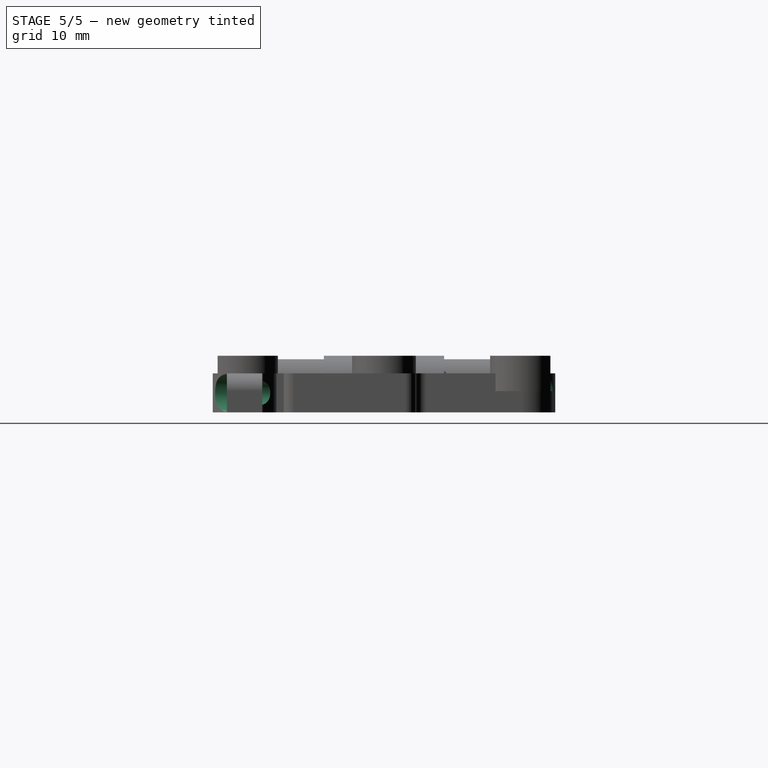
[diagram: stage 5 of 5 — right view after this stage's code; geometry added in this stage tinted green]
FEATURE [PartDesign::Body] Body008  label="_M3_adjust_screw_cutout"
  AllowCompound = false
  Group = -> [Sketch006,Pad006,Sketch007,Pad007,Sketch019,Pad019,Sketch020,Pad020]
  Origin = -> Origin008
  Tip = -> Pad020
FEATURE [PartDesign::FeatureBase] Clone005
  BaseFeature = -> Body008
  Suppressed = false
FEATURE [PartDesign::Body] Body047  label="_Attachment_point_tunnel"
  AllowCompound = false
  Group = -> [Sketch025,Pad024,Sketch026,Pad025]
  Origin = -> Origin047
  Tip = -> Pad025
FEATURE [PartDesign::FeatureBase] Clone034
  BaseFeature = -> Body047
  Suppressed = false
FEATURE [PartDesign::Body] Body050  label="Plate_attachment_point_3_tunnel"
  AllowCompound = false
  Group = -> [Clone034]
  Origin = -> Origin050
  Placement = pos=(11.5,0,5) rot=(0,0,1;0rad)
  Tip = -> Clone034
FEATURE [PartDesign::FeatureBase] Clone037
  BaseFeature = -> Body047
  Suppressed = false
FEATURE [PartDesign::Body] Body053  label="Plate_attachment_point_6_tunnel"
  AllowCompound = false
  Group = -> [Clone037]
  Origin = -> Origin053
  Placement = pos=(-11.5,0,5) rot=(0,0,1;0rad)
  Tip = -> Clone037
FEATURE [PartDesign::FeatureBase] Clone038
  BaseFeature = -> Body047
  Suppressed = false
FEATURE [PartDesign::Body] Body054  label="Plate_attachment_point_7_tunnel"
  AllowCompound = false
  Group = -> [Clone038]
  Origin = -> Origin054
  Placement = pos=(34.5,0,5) rot=(0,0,1;0rad)
  Tip = -> Clone038
FEATURE [PartDesign::FeatureBase] Clone039
  BaseFeature = -> Body047
  Suppressed = false
FEATURE [PartDesign::Body] Body060  label="_Special_attachment_point_tunnel"
  AllowCompound = false
  Group = -> [Sketch031,Pad030,Sketch032,Pad031,Sketch033,Pad032]
  Origin = -> Origin060
  Tip = -> Pad032
FEATURE [PartDesign::FeatureBase] Clone042
  BaseFeature = -> Body060
  Suppressed = false
FEATURE [PartDesign::Boolean] Boolean  label="Plate_cutouts"
  BaseFeature = -> Fillet
  Group = -> [Body055,Body063,Body064,Body010,Body009,Body050,Body053,Body054,Body061,Body062]
  Suppressed = false
  Type = 1
  UsePlacement = false
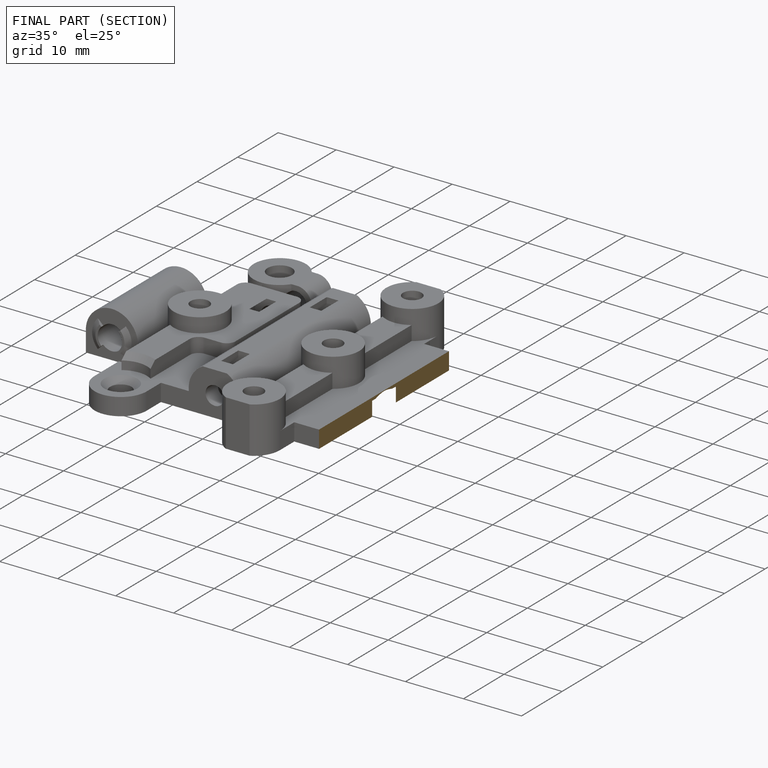
[diagram: finished part — half-section view (interior)]
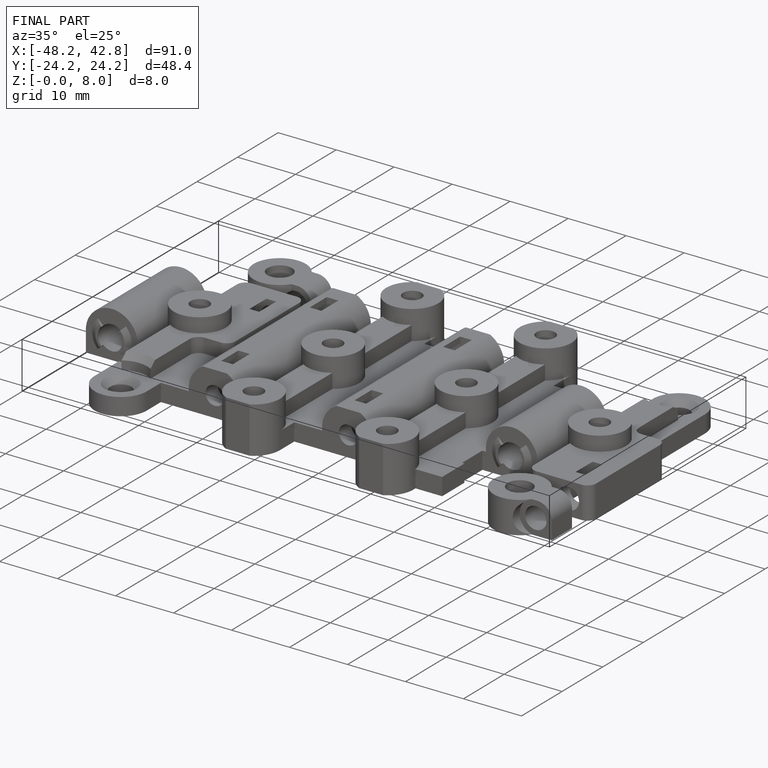
[diagram: finished part — iso view with bounding-box wireframe]
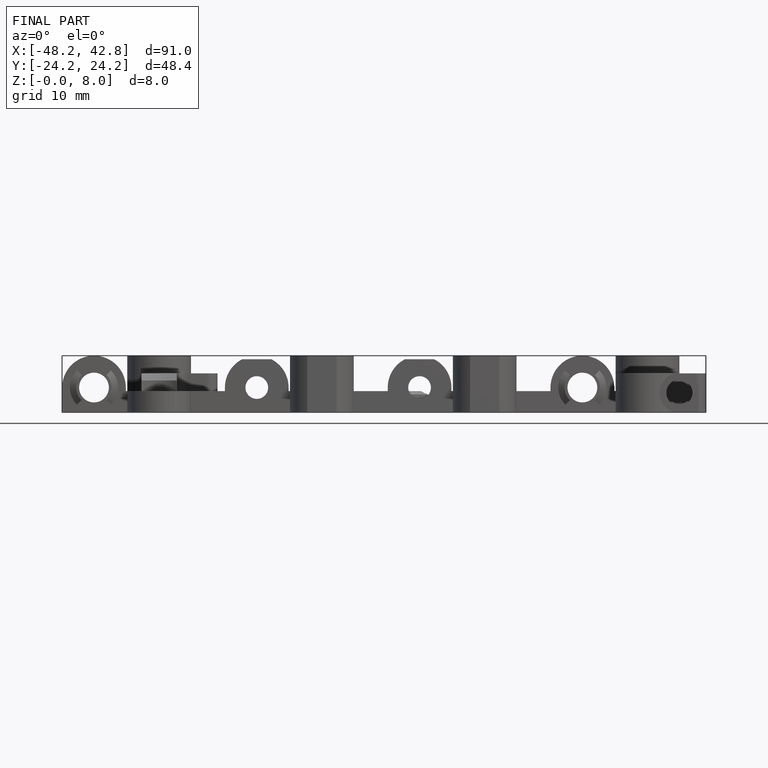
[diagram: finished part — front view with bounding-box wireframe]
